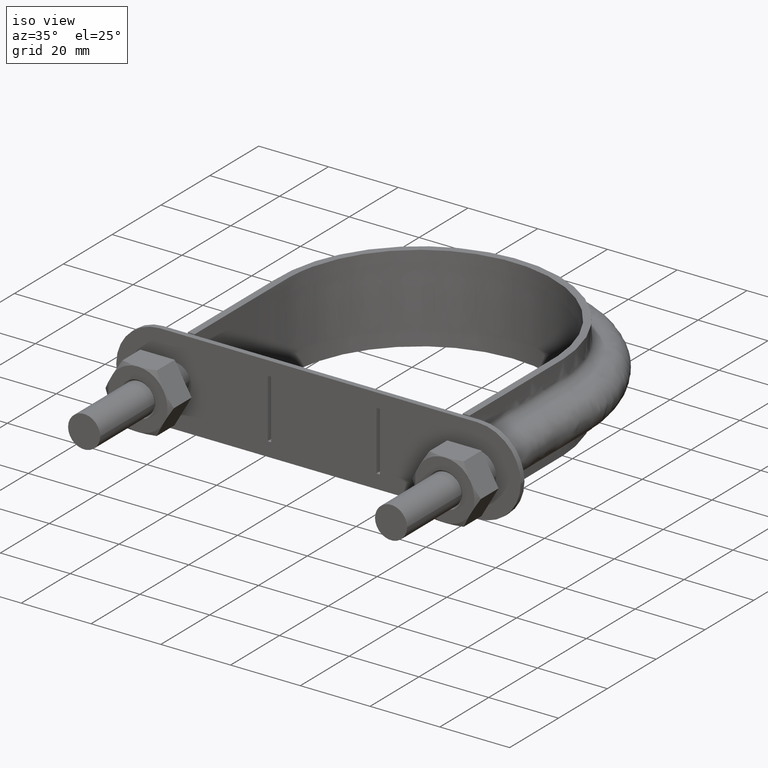
[diagram: clean part render]
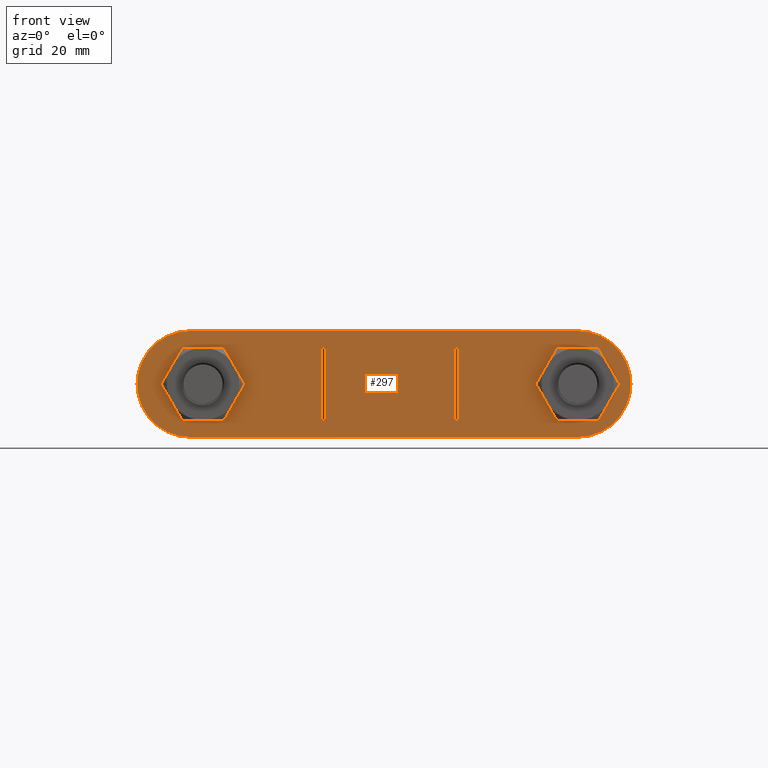
[diagram: tour spotlight — one face highlighted and labeled with its STEP entity id]
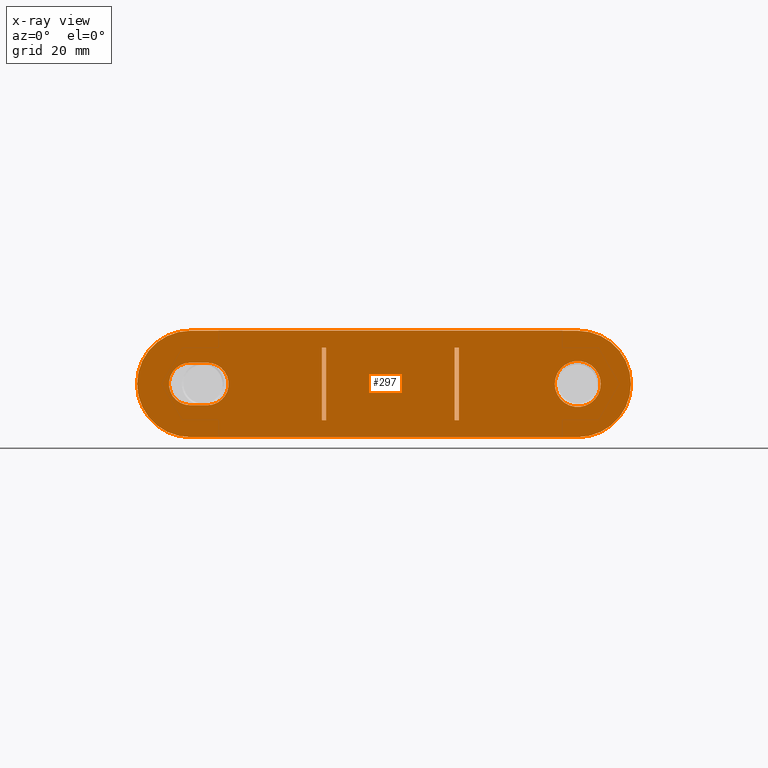
[diagram: x-ray of the same camera — body ghosted, this tour face saturated]
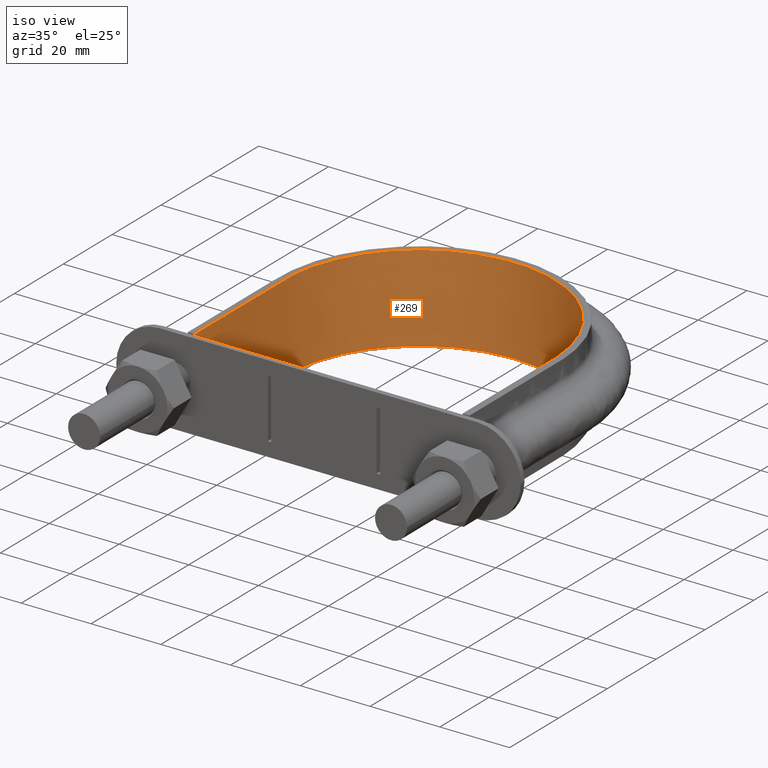
[diagram: tour spotlight — one face highlighted and labeled with its STEP entity id]
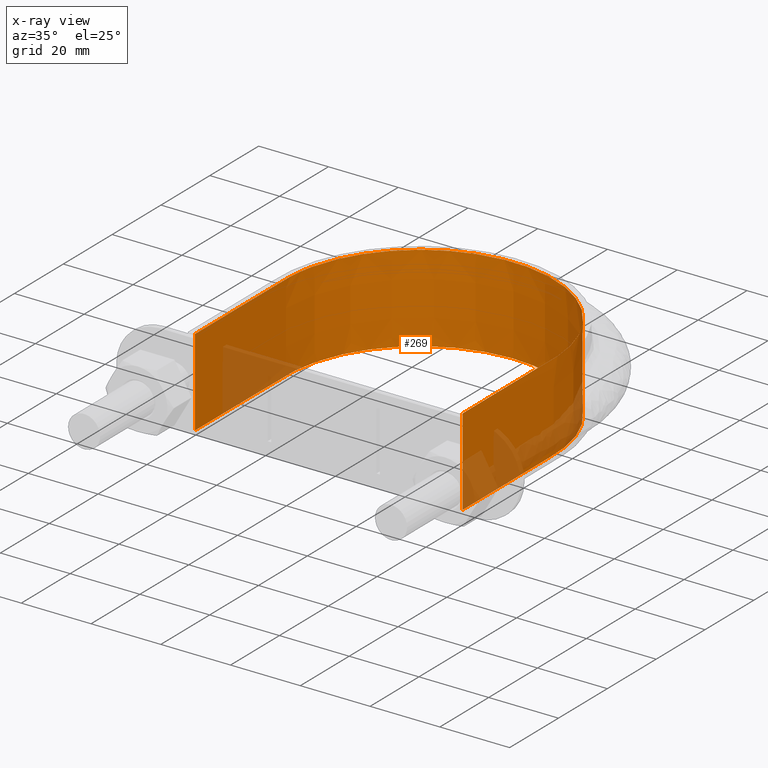
[diagram: x-ray of the same camera — body ghosted, this tour face saturated]
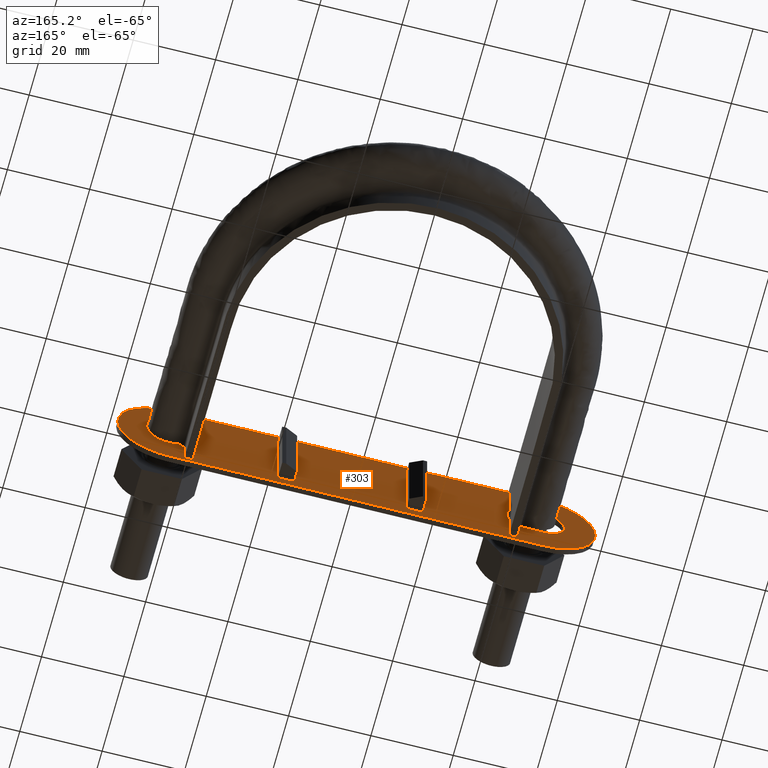
[diagram: tour spotlight — one face highlighted and labeled with its STEP entity id]
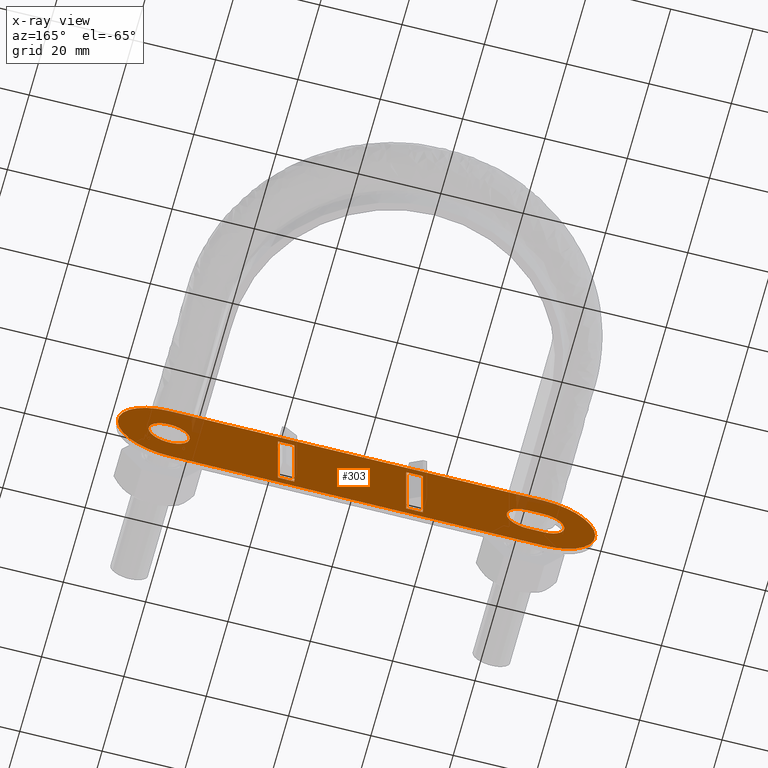
[diagram: x-ray of the same camera — body ghosted, this tour face saturated]
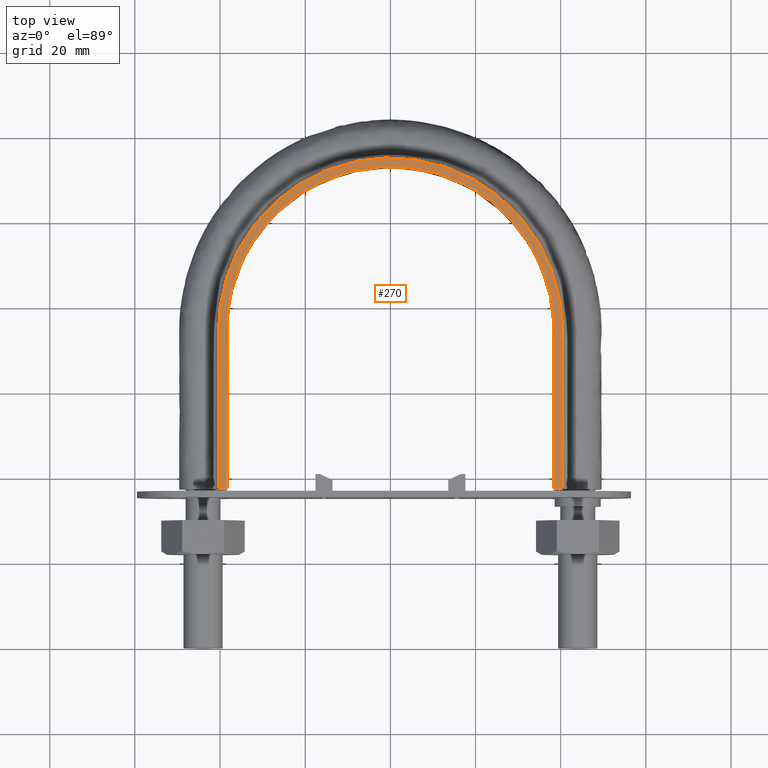
[diagram: tour spotlight — one face highlighted and labeled with its STEP entity id]
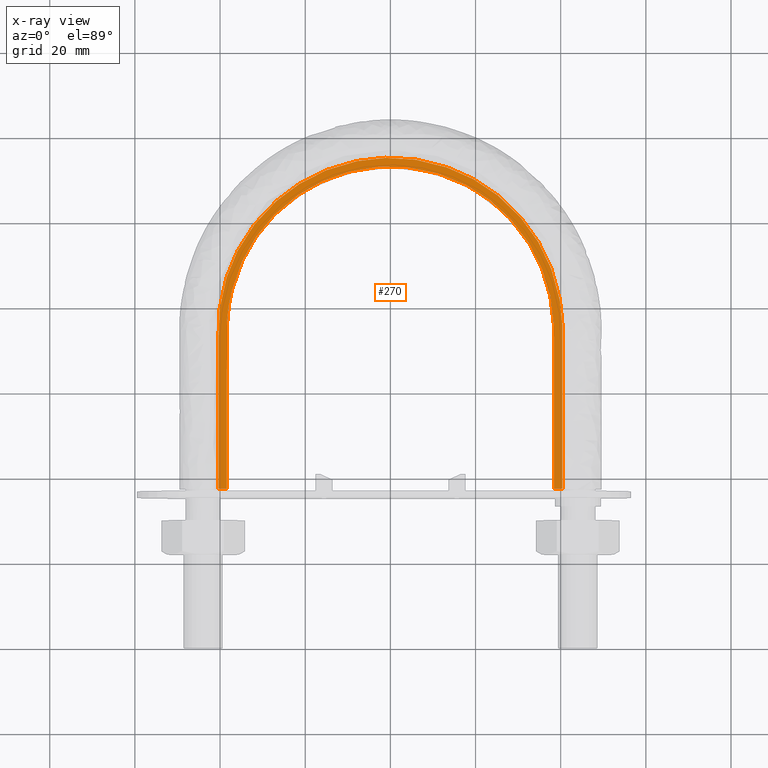
[diagram: x-ray of the same camera — body ghosted, this tour face saturated]
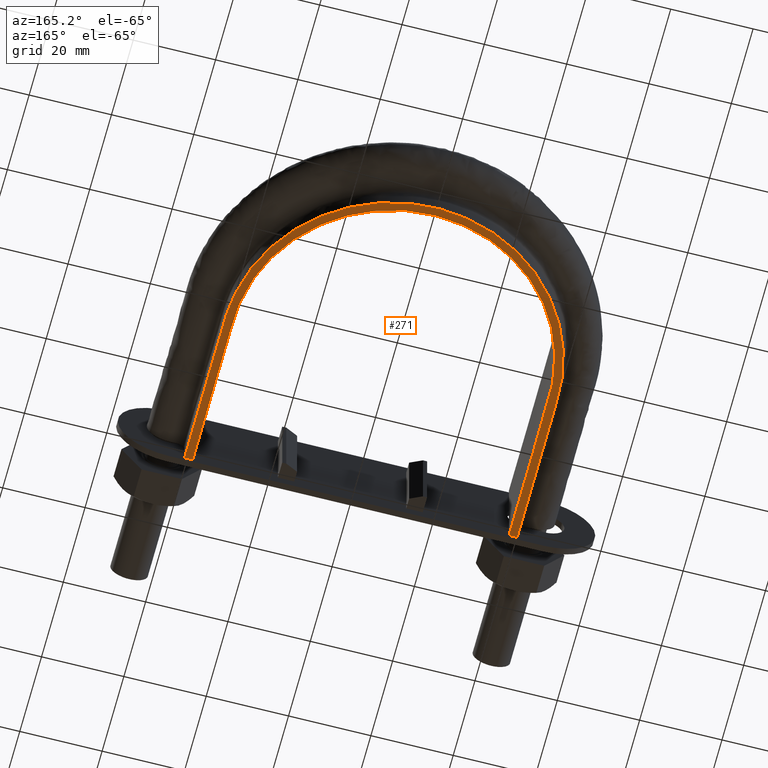
[diagram: tour spotlight — one face highlighted and labeled with its STEP entity id]
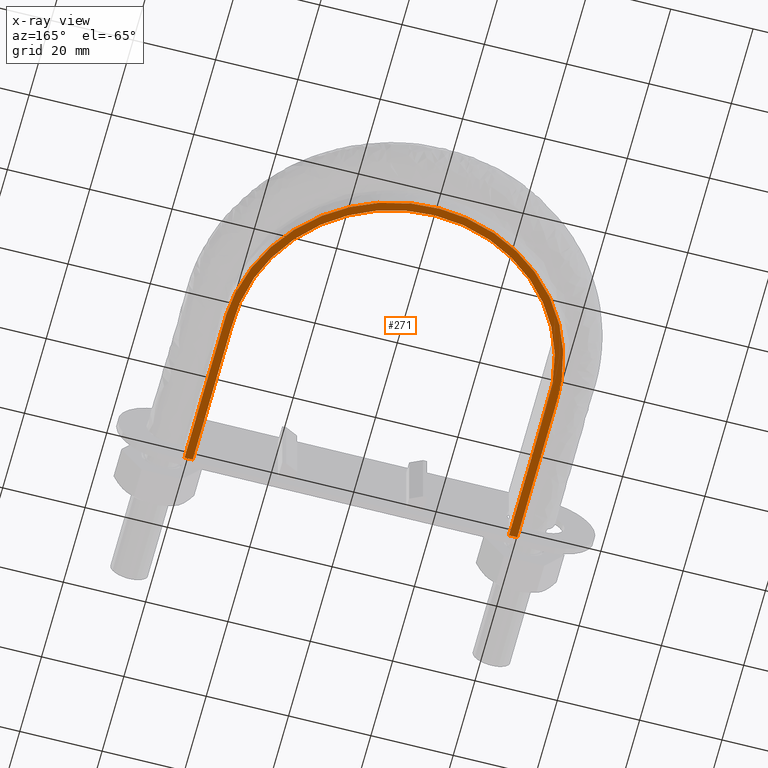
[diagram: x-ray of the same camera — body ghosted, this tour face saturated]
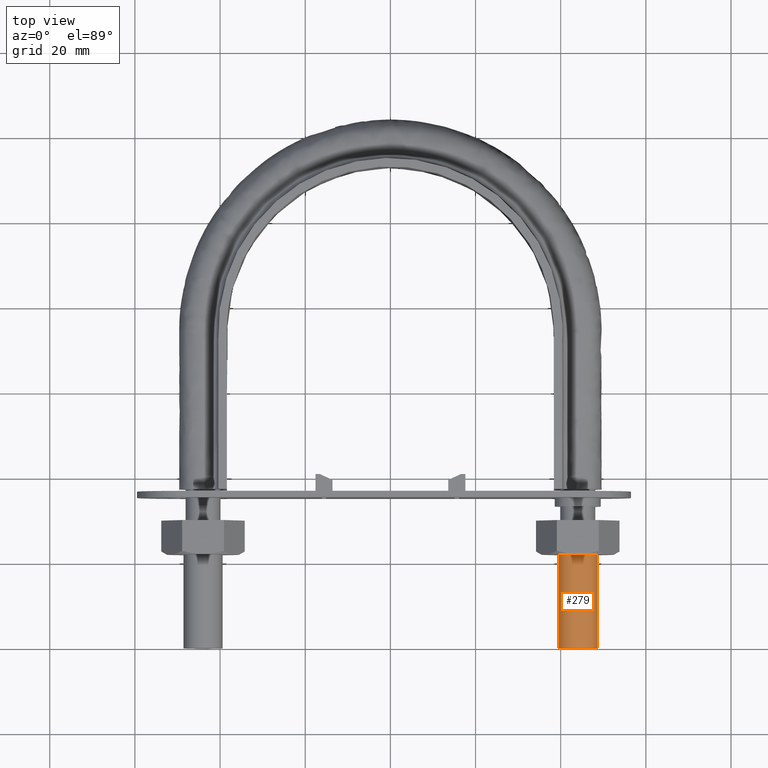
[diagram: tour spotlight — one face highlighted and labeled with its STEP entity id]
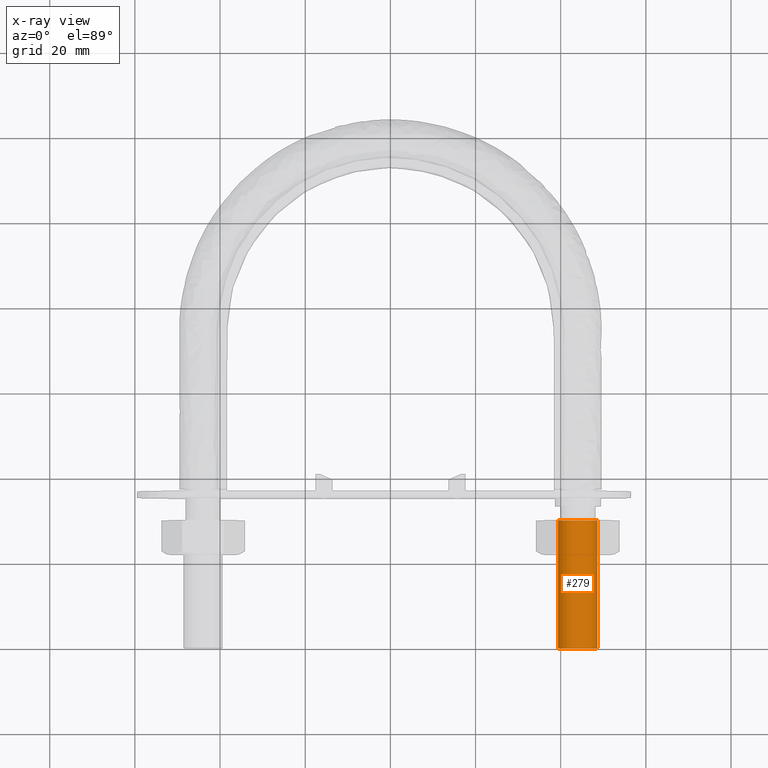
[diagram: x-ray of the same camera — body ghosted, this tour face saturated]
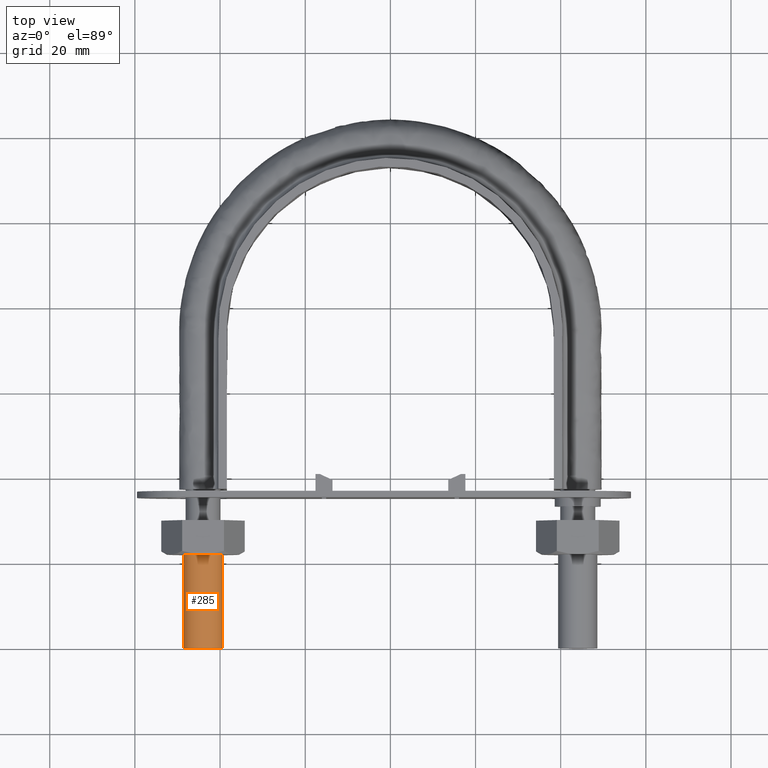
[diagram: tour spotlight — one face highlighted and labeled with its STEP entity id]
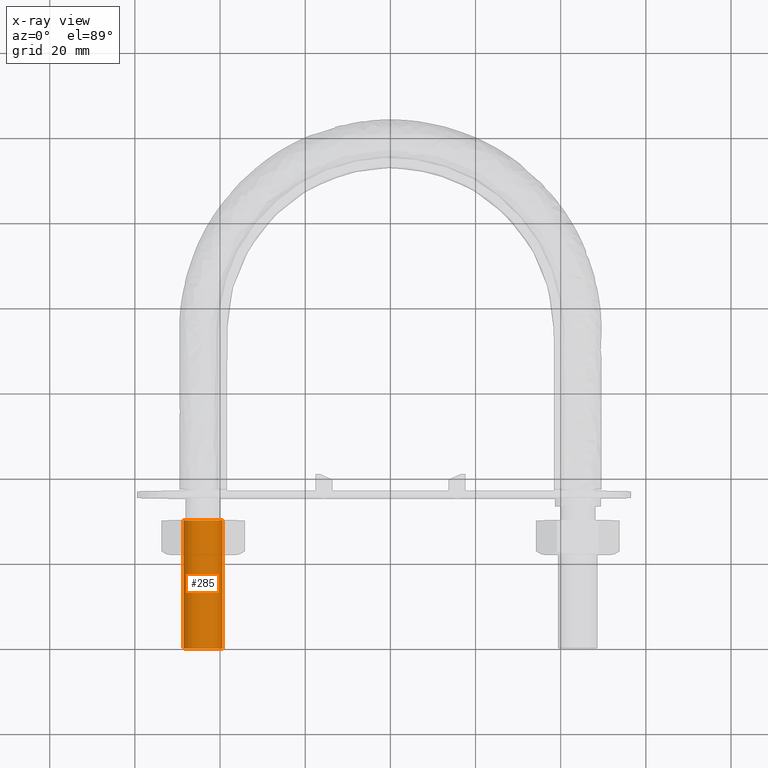
[diagram: x-ray of the same camera — body ghosted, this tour face saturated]
A machine part: a face-by-face anatomy tour. The part has 113 B-rep faces; the first image is the clean iso view, then the 7 largest visible faces are spotlighted one at a time (largest first), each with its STEP entity span.

Face 1 — front view, entity #297. An x-ray twin of the same camera follows (body ghosted, this face saturated) — the face is partly hidden behind the body. In plain terms, the highlighted planar face has unit normal (-0, 1, -0).
Definition (entity closure, byte-faithful):
#297 = ADVANCED_FACE( '', ( #451, #452, #453, #454, #455 ), #456, .F. );
#451 = FACE_BOUND( '', #1533, .T. );
#452 = FACE_OUTER_BOUND( '', #1534, .T. );
#453 = FACE_BOUND( '', #1535, .T. );
#454 = FACE_BOUND( '', #1536, .T. );
#455 = FACE_BOUND( '', #1537, .T. );
#456 = PLANE( '', #1538 );
#1533 = EDGE_LOOP( '', ( #1912, #1913, #1914, #1915 ) );
#1534 = EDGE_LOOP( '', ( #1916, #1917, #1918, #1919, #1920, #1921 ) );
#1535 = EDGE_LOOP( '', ( #1922 ) );
#1536 = EDGE_LOOP( '', ( #1923, #1924, #1925, #1926 ) );
#1537 = EDGE_LOOP( '', ( #1927, #1928, #1929, #1930 ) );
#1538 = AXIS2_PLACEMENT_3D( '', #1931, #1932, #1933 );
#1912 = ORIENTED_EDGE( '', *, *, #2593, .F. );
#1913 = ORIENTED_EDGE( '', *, *, #2594, .T. );
#1914 = ORIENTED_EDGE( '', *, *, #2595, .T. );
#1915 = ORIENTED_EDGE( '', *, *, #2596, .F. );
#1916 = ORIENTED_EDGE( '', *, *, #2597, .F. );
#1917 = ORIENTED_EDGE( '', *, *, #2598, .F. );
#1918 = ORIENTED_EDGE( '', *, *, #2599, .F. );
#1919 = ORIENTED_EDGE( '', *, *, #2600, .F. );
#1920 = ORIENTED_EDGE( '', *, *, #2601, .F. );
#1921 = ORIENTED_EDGE( '', *, *, #2602, .F. );
#1922 = ORIENTED_EDGE( '', *, *, #2603, .T. );
#1923 = ORIENTED_EDGE( '', *, *, #2604, .F. );
#1924 = ORIENTED_EDGE( '', *, *, #2605, .F. );
#1925 = ORIENTED_EDGE( '', *, *, #2606, .F. );
#1926 = ORIENTED_EDGE( '', *, *, #2607, .F. );
#1927 = ORIENTED_EDGE( '', *, *, #2608, .T. );
#1928 = ORIENTED_EDGE( '', *, *, #2609, .T. );
#1929 = ORIENTED_EDGE( '', *, *, #2610, .F. );
#1930 = ORIENTED_EDGE( '', *, *, #2611, .F. );
#1931 = CARTESIAN_POINT( '', ( -47.0000000000000, 35.3000000000000, 1.16518002133849E-011 ) );
#1932 = DIRECTION( '', ( -4.78873666697753E-017, 1.00000000000000, -1.48458090479487E-015 ) );
#1933 = DIRECTION( '', ( 2.47579734491594E-013, 1.48458090479488E-015, 1.00000000000000 ) );
#2593 = EDGE_CURVE( '', #2863, #2864, #2865, .T. );
#2594 = EDGE_CURVE( '', #2863, #2866, #2867, .T. );
#2595 = EDGE_CURVE( '', #2866, #2868, #2869, .T. );
#2596 = EDGE_CURVE( '', #2864, #2868, #2870, .T. );
#2597 = EDGE_CURVE( '', #2871, #2872, #2873, .T. );
#2598 = EDGE_CURVE( '', #2874, #2871, #2875, .T. );
#2599 = EDGE_CURVE( '', #2876, #2874, #2877, .T. );
#2600 = EDGE_CURVE( '', #2878, #2876, #2879, .T. );
#2601 = EDGE_CURVE( '', #2880, #2878, #2881, .T. );
#2602 = EDGE_CURVE( '', #2872, #2880, #2882, .T. );
#2603 = EDGE_CURVE( '', #2883, #2883, #2884, .T. );
#2604 = EDGE_CURVE( '', #2885, #2886, #2887, .T. );
#2605 = EDGE_CURVE( '', #2888, #2885, #2889, .T. );
#2606 = EDGE_CURVE( '', #2890, #2888, #2891, .T. );
#2607 = EDGE_CURVE( '', #2886, #2890, #2892, .T. );
#2608 = EDGE_CURVE( '', #2893, #2894, #2895, .T. );
#2609 = EDGE_CURVE( '', #2894, #2896, #2897, .T. );
#2610 = EDGE_CURVE( '', #2898, #2896, #2899, .T. );
#2611 = EDGE_CURVE( '', #2893, #2898, #2900, .T. );
#2863 = VERTEX_POINT( '', #3520 );
#2864 = VERTEX_POINT( '', #3521 );
#2865 = LINE( '', #3522, #3523 );
#2866 = VERTEX_POINT( '', #3524 );
#2867 = LINE( '', #3525, #3526 );
#2868 = VERTEX_POINT( '', #3527 );
#2869 = LINE( '', #3528, #3529 );
#2870 = LINE( '', #3530, #3531 );
#2871 = VERTEX_POINT( '', #3532 );
#2872 = VERTEX_POINT( '', #3533 );
#2873 = CIRCLE( '', #3534, 12.5000000000000 );
#2874 = VERTEX_POINT( '', #3535 );
#2875 = CIRCLE( '', #3536, 12.5000000000000 );
#2876 = VERTEX_POINT( '', #3537 );
#2877 = LINE( '', #3538, #3539 );
#2878 = VERTEX_POINT( '', #3540 );
#2879 = CIRCLE( '', #3541, 12.5000000000000 );
#2880 = VERTEX_POINT( '', #3542 );
#2881 = CIRCLE( '', #3543, 12.5000000000000 );
#2882 = LINE( '', #3544, #3545 );
#2883 = VERTEX_POINT( '', #3546 );
#2884 = CIRCLE( '', #3547, 5.40000000000000 );
#2885 = VERTEX_POINT( '', #3548 );
#2886 = VERTEX_POINT( '', #3549 );
#2887 = CIRCLE( '', #3550, 5.00000000000000 );
#2888 = VERTEX_POINT( '', #3551 );
#2889 = LINE( '', #3552, #3553 );
#2890 = VERTEX_POINT( '', #3554 );
#2891 = CIRCLE( '', #3555, 5.00000000000000 );
#2892 = LINE( '', #3556, #3557 );
#2893 = VERTEX_POINT( '', #3558 );
#2894 = VERTEX_POINT( '', #3559 );
#2895 = LINE( '', #3560, #3561 );
#2896 = VERTEX_POINT( '', #3562 );
#2897 = LINE( '', #3563, #3564 );
#2898 = VERTEX_POINT( '', #3565 );
#2899 = LINE( '', #3566, #3567 );
#2900 = LINE( '', #3568, #3569 );
#3520 = CARTESIAN_POINT( '', ( -16.1000000000021, 35.3000000000000, -8.49999999999600 ) );
#3521 = CARTESIAN_POINT( '', ( -15.1000000000021, 35.3000000000000, -8.49999999999625 ) );
#3522 = CARTESIAN_POINT( '', ( -16.1000000000021, 35.3000000000000, -8.49999999999600 ) );
#3523 = VECTOR( '', #4150, 1000.00000000000 );
#3524 = CARTESIAN_POINT( '', ( -16.0999999999979, 35.3000000000000, 8.50000000000400 ) );
#3525 = CARTESIAN_POINT( '', ( -16.1000000000021, 35.3000000000000, -8.49999999999600 ) );
#3526 = VECTOR( '', #4151, 1000.00000000000 );
#3527 = CARTESIAN_POINT( '', ( -15.0999999999979, 35.3000000000000, 8.50000000000375 ) );
#3528 = CARTESIAN_POINT( '', ( -16.0999999999979, 35.3000000000000, 8.50000000000400 ) );
#3529 = VECTOR( '', #4152, 1000.00000000000 );
#3530 = CARTESIAN_POINT( '', ( -15.1000000000021, 35.3000000000000, -8.49999999999625 ) );
#3531 = VECTOR( '', #4153, 1000.00000000000 );
#3532 = CARTESIAN_POINT( '', ( -59.5000000000000, 35.3000000000000, 1.47430774475778E-011 ) );
#3533 = CARTESIAN_POINT( '', ( -46.9999999999969, 35.3000000000000, 12.5000000000117 ) );
#3534 = AXIS2_PLACEMENT_3D( '', #4154, #4155, #4156 );
#3535 = CARTESIAN_POINT( '', ( -47.0000000000031, 35.3000000000000, -12.4999999999883 ) );
#3536 = AXIS2_PLACEMENT_3D( '', #4157, #4158, #4159 );
#3537 = CARTESIAN_POINT( '', ( 43.9999999999970, 35.3000000000000, -12.5000000000109 ) );
#3538 = CARTESIAN_POINT( '', ( 43.9999999999970, 35.3000000000000, -12.5000000000109 ) );
#3539 = VECTOR( '', #4160, 1000.00000000000 );
#3540 = CARTESIAN_POINT( '', ( 56.5000000000000, 35.3000000000000, -1.39727023064952E-011 ) );
#3541 = AXIS2_PLACEMENT_3D( '', #4161, #4162, #4163 );
#3542 = CARTESIAN_POINT( '', ( 44.0000000000031, 35.3000000000000, 12.4999999999891 ) );
#3543 = AXIS2_PLACEMENT_3D( '', #4164, #4165, #4166 );
#3544 = CARTESIAN_POINT( '', ( -46.9999999999969, 35.3000000000000, 12.5000000000117 ) );
#3545 = VECTOR( '', #4167, 1000.00000000000 );
#3546 = CARTESIAN_POINT( '', ( 49.4000000000000, 35.3000000000000, -1.22131514681289E-011 ) );
#3547 = AXIS2_PLACEMENT_3D( '', #4168, #4169, #4170 );
#3548 = CARTESIAN_POINT( '', ( -46.9999999999988, 35.2999984999318, 5.00000000001165 ) );
#3549 = CARTESIAN_POINT( '', ( -47.0000000000012, 35.2999984999318, -4.99999999998835 ) );
#3550 = AXIS2_PLACEMENT_3D( '', #4171, #4172, #4173 );
#3551 = CARTESIAN_POINT( '', ( -42.9999999999988, 35.2999984999318, 5.00000000001066 ) );
#3552 = CARTESIAN_POINT( '', ( -42.9999999999988, 35.2999984999318, 5.00000000001066 ) );
#3553 = VECTOR( '', #4174, 1000.00000000000 );
#3554 = CARTESIAN_POINT( '', ( -43.0000000000012, 35.2999984999318, -4.99999999998934 ) );
#3555 = AXIS2_PLACEMENT_3D( '', #4175, #4176, #4177 );
#3556 = CARTESIAN_POINT( '', ( -47.0000000000012, 35.2999984999318, -4.99999999998835 ) );
#3557 = VECTOR( '', #4178, 1000.00000000000 );
#3558 = CARTESIAN_POINT( '', ( 16.0999999999979, 35.3000000000000, -8.50000000000397 ) );
#3559 = CARTESIAN_POINT( '', ( 15.0999999999979, 35.3000000000000, -8.50000000000373 ) );
#3560 = CARTESIAN_POINT( '', ( 16.0999999999979, 35.3000000000000, -8.50000000000397 ) );
#3561 = VECTOR( '', #4179, 1000.00000000000 );
#3562 = CARTESIAN_POINT( '', ( 15.1000000000021, 35.3000000000000, 8.49999999999628 ) );
#3563 = CARTESIAN_POINT( '', ( 15.0999999999979, 35.3000000000000, -8.50000000000373 ) );
#3564 = VECTOR( '', #4180, 1000.00000000000 );
#3565 = CARTESIAN_POINT( '', ( 16.1000000000021, 35.3000000000000, 8.49999999999603 ) );
#3566 = CARTESIAN_POINT( '', ( 16.1000000000021, 35.3000000000000, 8.49999999999603 ) );
#3567 = VECTOR( '', #4181, 1000.00000000000 );
#3568 = CARTESIAN_POINT( '', ( 16.0999999999979, 35.3000000000000, -8.50000000000397 ) );
#3569 = VECTOR( '', #4182, 1000.00000000000 );
#4150 = DIRECTION( '', ( 1.00000000000000, 4.78873666694077E-017, -2.47579734491594E-013 ) );
#4151 = DIRECTION( '', ( 2.47699483305936E-013, 1.74138306587251E-015, 1.00000000000000 ) );
#4152 = DIRECTION( '', ( 1.00000000000000, 4.78873666694077E-017, -2.47579734491594E-013 ) );
#4153 = DIRECTION( '', ( 2.47699483305936E-013, 1.74138306587251E-015, 1.00000000000000 ) );
#4154 = CARTESIAN_POINT( '', ( -47.0000000000000, 35.3000000000000, 1.16518002133849E-011 ) );
#4155 = DIRECTION( '', ( -4.78873666697753E-017, 1.00000000000000, -1.48458090479487E-015 ) );
#4156 = DIRECTION( '', ( -1.00000000000000, -4.78873666694079E-017, 2.47440956613516E-013 ) );
#4157 = CARTESIAN_POINT( '', ( -47.0000000000000, 35.3000000000000, 1.16552696603368E-011 ) );
#4158 = DIRECTION( '', ( -4.78873666697753E-017, 1.00000000000000, -1.48458090479487E-015 ) );
#4159 = DIRECTION( '', ( -2.47024622979282E-013, -1.48458090479488E-015, -1.00000000000000 ) );
#4160 = DIRECTION( '', ( -1.00000000000000, -4.78873666694077E-017, 2.47579734491594E-013 ) );
#4161 = CARTESIAN_POINT( '', ( 44.0000000000000, 35.3000000000000, -1.08744861783983E-011 ) );
#4162 = DIRECTION( '', ( -4.78873666697753E-017, 1.00000000000000, -1.48458090479487E-015 ) );
#4163 = DIRECTION( '', ( 1.00000000000000, 4.78873666694079E-017, -2.47440956613516E-013 ) );
#4164 = CARTESIAN_POINT( '', ( 44.0000000000000, 35.3000000000000, -1.08779556253502E-011 ) );
#4165 = DIRECTION( '', ( -4.78873666697753E-017, 1.00000000000000, -1.48458090479487E-015 ) );
#4166 = DIRECTION( '', ( 2.47579734491594E-013, 1.48458090479488E-015, 1.00000000000000 ) );
#4167 = DIRECTION( '', ( 1.00000000000000, 4.78873666694077E-017, -2.47579734491594E-013 ) );
#4168 = CARTESIAN_POINT( '', ( 44.0000000000000, 35.3000000000000, -1.08762209018742E-011 ) );
#4169 = DIRECTION( '', ( -4.78873666697753E-017, 1.00000000000000, -1.48458090479487E-015 ) );
#4170 = DIRECTION( '', ( 1.00000000000000, 4.78873666694077E-017, -2.47579734491594E-013 ) );
#4171 = CARTESIAN_POINT( '', ( -47.0000000000000, 35.2999984999318, 1.16535349390878E-011 ) );
#4172 = DIRECTION( '', ( 4.78873666697753E-017, -1.00000000000000, 1.48458090479487E-015 ) );
#4173 = DIRECTION( '', ( 2.47579734491594E-013, 1.48458090479488E-015, 1.00000000000000 ) );
#4174 = DIRECTION( '', ( -1.00000000000000, -4.78873666694077E-017, 2.47579734491594E-013 ) );
#4175 = CARTESIAN_POINT( '', ( -43.0000000000000, 35.2999984999318, 1.06632160011214E-011 ) );
#4176 = DIRECTION( '', ( 4.78873666697753E-017, -1.00000000000000, 1.48458090479487E-015 ) );
#4177 = DIRECTION( '', ( -2.47579734491594E-013, -1.48458090479488E-015, -1.00000000000000 ) );
#4178 = DIRECTION( '', ( 1.00000000000000, 4.78873666694077E-017, -2.47579734491594E-013 ) );
#4179 = DIRECTION( '', ( -1.00000000000000, 7.45732687128300E-017, 2.47579734491594E-013 ) );
#4180 = DIRECTION( '', ( 2.47459985677253E-013, 1.74138306587251E-015, 1.00000000000000 ) );
#4181 = DIRECTION( '', ( -1.00000000000000, 7.45732687128300E-017, 2.47579734491594E-013 ) );
#4182 = DIRECTION( '', ( 2.47459985677253E-013, 1.74138306587251E-015, 1.00000000000000 ) );

Face 2 — iso view, entity #269. An x-ray twin of the same camera follows (body ghosted, this face saturated) — the face is partly hidden behind the body. In plain terms, the highlighted face is a SurfaceOfExtrusion surface.
Definition (entity closure, byte-faithful):
#269 = ADVANCED_FACE( '', ( #387 ), #388, .T. );
#387 = FACE_OUTER_BOUND( '', #644, .T. );
#388 = SURFACE_OF_LINEAR_EXTRUSION( '', #645, #646 );
#644 = EDGE_LOOP( '', ( #1736, #1737, #1738, #1739 ) );
#645 = B_SPLINE_CURVE_WITH_KNOTS( '', 3, ( #1740, #1741, #1742, #1743, #1744, #1745, #1746, #1747, #1748, #1749, #1750, #1751, #1752, #1753, #1754, #1755, #1756 ), .UNSPECIFIED., .F., .F., ( 4, 3, 1, 1, 1, 1, 1, 1, 1, 3, 4 ), ( -7.93017456359102, -7.00000000000000, -6.50000000000000, -6.00000000000000, -5.00000000000000, -4.00000000000000, -3.00000000000000, -2.00000000000000, -1.50000000000000, -1.00000000000000, -0.0698254364089773 ), .UNSPECIFIED. );
#646 = VECTOR( '', #1757, 1000.00000000000 );
#1736 = ORIENTED_EDGE( '', *, *, #2546, .T. );
#1737 = ORIENTED_EDGE( '', *, *, #2555, .T. );
#1738 = ORIENTED_EDGE( '', *, *, #2552, .F. );
#1739 = ORIENTED_EDGE( '', *, *, #2556, .T. );
#1740 = CARTESIAN_POINT( '', ( 38.4000000000000, 37.3000000000000, 12.5000100000909 ) );
#1741 = CARTESIAN_POINT( '', ( 38.4000000000000, 49.7333333333333, 12.5000100000909 ) );
#1742 = CARTESIAN_POINT( '', ( 38.4000000000000, 62.1666666666667, 12.5000100000909 ) );
#1743 = CARTESIAN_POINT( '', ( 38.4000000000000, 74.6000000000000, 12.5000100000909 ) );
#1744 = CARTESIAN_POINT( '', ( 38.4000000000000, 77.9378960382428, 12.5000100000909 ) );
#1745 = CARTESIAN_POINT( '', ( 37.5004323173849, 84.6534987012364, 12.5000100000909 ) );
#1746 = CARTESIAN_POINT( '', ( 32.3590360537293, 97.1468427507952, 12.5000100000909 ) );
#1747 = CARTESIAN_POINT( '', ( 20.0971465093487, 109.410921736661, 12.5000100000909 ) );
#1748 = CARTESIAN_POINT( '', ( 2.79356000082899E-014, 114.794539131670, 12.5000100000909 ) );
#1749 = CARTESIAN_POINT( '', ( -20.0971465093486, 109.410921736661, 12.5000100000909 ) );
#1750 = CARTESIAN_POINT( '', ( -32.3590360537293, 97.1468427507952, 12.5000100000909 ) );
#1751 = CARTESIAN_POINT( '', ( -37.5004323173848, 84.6534987012364, 12.5000100000909 ) );
#1752 = CARTESIAN_POINT( '', ( -38.4000000000000, 77.9378960382428, 12.5000100000909 ) );
#1753 = CARTESIAN_POINT( '', ( -38.4000000000000, 74.6000000000000, 12.5000100000909 ) );
#1754 = CARTESIAN_POINT( '', ( -38.4000000000000, 62.1666666666667, 12.5000100000909 ) );
#1755 = CARTESIAN_POINT( '', ( -38.4000000000000, 49.7333333333333, 12.5000100000909 ) );
#1756 = CARTESIAN_POINT( '', ( -38.4000000000000, 37.3000000000000, 12.5000100000909 ) );
#1757 = DIRECTION( '', ( 0.000000000000000, 0.000000000000000, -1.00000000000000 ) );
#2546 = EDGE_CURVE( '', #2787, #2788, #2789, .T. );
#2552 = EDGE_CURVE( '', #2797, #2800, #2801, .T. );
#2555 = EDGE_CURVE( '', #2788, #2800, #2805, .F. );
#2556 = EDGE_CURVE( '', #2797, #2787, #2806, .T. );
#2787 = VERTEX_POINT( '', #3194 );
#2788 = VERTEX_POINT( '', #3195 );
#2789 = LINE( '', #3196, #3197 );
#2797 = VERTEX_POINT( '', #3246 );
#2800 = VERTEX_POINT( '', #3250 );
#2801 = LINE( '', #3251, #3252 );
#2805 = B_SPLINE_CURVE_WITH_KNOTS( '', 3, ( #3287, #3288, #3289, #3290, #3291, #3292, #3293, #3294, #3295, #3296, #3297, #3298, #3299, #3300, #3301, #3302, #3303 ), .UNSPECIFIED., .F., .F., ( 4, 3, 1, 1, 1, 1, 1, 1, 1, 3, 4 ), ( -7.93017456359102, -7.00000000000000, -6.50000000000000, -6.00000000000000, -5.00000000000000, -4.00000000000000, -3.00000000000000, -2.00000000000000, -1.50000000000000, -1.00000000000000, -0.0698254364089773 ), .UNSPECIFIED. );
#2806 = B_SPLINE_CURVE_WITH_KNOTS( '', 3, ( #3304, #3305, #3306, #3307, #3308, #3309, #3310, #3311, #3312, #3313, #3314, #3315, #3316, #3317, #3318, #3319, #3320, #3321, #3322, #3323, #3324, #3325, #3326, #3327, #3328, #3329, #3330, #3331, #3332, #3333, #3334, #3335, #3336, #3337, #3338, #3339, #3340, #3341, #3342, #3343, #3344, #3345, #3346, #3347, #3348, #3349, #3350, #3351, #3352, #3353, #3354, #3355, #3356, #3357, #3358, #3359, #3360, #3361, #3362, #3363, #3364, #3365, #3366, #3367, #3368, #3369, #3370, #3371, #3372, #3373, #3374, #3375, #3376, #3377, #3378, #3379, #3380, #3381, #3382, #3383, #3384, #3385, #3386, #3387, #3388, #3389 ), .UNSPECIFIED., .F., .F., ( 4, 1, 2, 2, 2, 2, 2, 2, 2, 2, 2, 2, 2, 2, 2, 2, 2, 2, 2, 2, 2, 2, 2, 2, 2, 2, 2, 2, 2, 2, 2, 2, 2, 2, 2, 2, 2, 2, 2, 2, 2, 2, 1, 4 ), ( 6.93889390390723E-018, 0.0243379018108105, 0.0365068527162158, 0.0380279715793914, 0.0395490904425670, 0.0425913281689183, 0.0456335658952696, 0.0486758036216209, 0.0547602790743234, 0.0578025168006747, 0.0593236356638503, 0.0608447545270259, 0.0669292299797284, 0.0699714677060797, 0.0714925865692553, 0.0730137054324310, 0.0790981808851335, 0.0851826563378360, 0.0867037752010117, 0.0882248940641873, 0.0912671317905386, 0.0973516072432410, 0.0988727261064167, 0.100393844969592, 0.103436082695944, 0.109520558148646, 0.112562795874997, 0.115605033601349, 0.121689509054051, 0.123210627917227, 0.124731746780402, 0.127773984506753, 0.133858459959456, 0.136900697685807, 0.139942935412158, 0.146027410864861, 0.149069648591212, 0.150590767454388, 0.152111886317563, 0.155154124043914, 0.156675242907090, 0.158196361770266, 0.170365312675671, 0.194703214486481 ), .UNSPECIFIED. );
#3194 = CARTESIAN_POINT( '', ( -38.4000000000000, 37.3000000000000, 12.5000000000000 ) );
#3195 = CARTESIAN_POINT( '', ( -38.4000000000000, 37.3000000000000, -12.5000000000000 ) );
#3196 = CARTESIAN_POINT( '', ( -38.4000000000000, 37.3000000000000, 12.5000100000909 ) );
#3197 = VECTOR( '', #4084, 1000.00000000000 );
#3246 = CARTESIAN_POINT( '', ( 38.4000000000000, 37.3000000000000, 12.5000000000000 ) );
#3250 = CARTESIAN_POINT( '', ( 38.4000000000000, 37.3000000000000, -12.5000000000000 ) );
#3251 = CARTESIAN_POINT( '', ( 38.4000000000000, 37.3000000000000, 12.5000100000909 ) );
#3252 = VECTOR( '', #4088, 1000.00000000000 );
#3287 = CARTESIAN_POINT( '', ( 38.4000000000000, 37.3000000000000, -12.5000000000000 ) );
#3288 = CARTESIAN_POINT( '', ( 38.4000000000000, 49.7333333333333, -12.5000000000000 ) );
#3289 = CARTESIAN_POINT( '', ( 38.4000000000000, 62.1666666666667, -12.5000000000000 ) );
#3290 = CARTESIAN_POINT( '', ( 38.4000000000000, 74.6000000000000, -12.5000000000000 ) );
#3291 = CARTESIAN_POINT( '', ( 38.4000000000000, 77.9378960382428, -12.5000000000000 ) );
#3292 = CARTESIAN_POINT( '', ( 37.5004323173849, 84.6534987012364, -12.5000000000000 ) );
#3293 = CARTESIAN_POINT( '', ( 32.3590360537293, 97.1468427507952, -12.5000000000000 ) );
#3294 = CARTESIAN_POINT( '', ( 20.0971465093487, 109.410921736661, -12.5000000000000 ) );
#3295 = CARTESIAN_POINT( '', ( 2.79356000082899E-014, 114.794539131670, -12.5000000000000 ) );
#3296 = CARTESIAN_POINT( '', ( -20.0971465093486, 109.410921736661, -12.5000000000000 ) );
#3297 = CARTESIAN_POINT( '', ( -32.3590360537293, 97.1468427507952, -12.5000000000000 ) );
#3298 = CARTESIAN_POINT( '', ( -37.5004323173848, 84.6534987012364, -12.5000000000000 ) );
#3299 = CARTESIAN_POINT( '', ( -38.4000000000000, 77.9378960382428, -12.5000000000000 ) );
#3300 = CARTESIAN_POINT( '', ( -38.4000000000000, 74.6000000000000, -12.5000000000000 ) );
#3301 = CARTESIAN_POINT( '', ( -38.4000000000000, 62.1666666666667, -12.5000000000000 ) );
#3302 = CARTESIAN_POINT( '', ( -38.4000000000000, 49.7333333333333, -12.5000000000000 ) );
#3303 = CARTESIAN_POINT( '', ( -38.4000000000000, 37.3000000000000, -12.5000000000000 ) );
#3304 = CARTESIAN_POINT( '', ( 38.4000000000000, 37.3000000000000, 12.5000000000000 ) );
#3305 = CARTESIAN_POINT( '', ( 38.4000000000000, 45.4126339369367, 12.5000000000000 ) );
#3306 = CARTESIAN_POINT( '', ( 38.4000000000000, 57.5815848423419, 12.5000000000000 ) );
#3307 = CARTESIAN_POINT( '', ( 38.4000000000000, 69.7505357477469, 12.5000000000000 ) );
#3308 = CARTESIAN_POINT( '', ( 38.4000000000000, 74.3138923372738, 12.5000000000000 ) );
#3309 = CARTESIAN_POINT( '', ( 38.4027743076037, 74.8211194098904, 12.5000000000000 ) );
#3310 = CARTESIAN_POINT( '', ( 38.3830167791574, 75.8338636956792, 12.5000000000000 ) );
#3311 = CARTESIAN_POINT( '', ( 38.3628782069929, 76.3395426144401, 12.5000000000000 ) );
#3312 = CARTESIAN_POINT( '', ( 38.2722040230530, 77.8545348977658, 12.5000000000000 ) );
#3313 = CARTESIAN_POINT( '', ( 38.1714849409613, 78.8618088567026, 12.5000000000000 ) );
#3314 = CARTESIAN_POINT( '', ( 37.8904277266655, 80.8709771566201, 12.5000000000000 ) );
#3315 = CARTESIAN_POINT( '', ( 37.7100929165158, 81.8728717220619, 12.5000000000000 ) );
#3316 = CARTESIAN_POINT( '', ( 37.2682777085644, 83.8711780914732, 12.5000000000000 ) );
#3317 = CARTESIAN_POINT( '', ( 37.0058649207665, 84.8692095980045, 12.5000000000000 ) );
#3318 = CARTESIAN_POINT( '', ( 36.1099085355124, 87.8004283289942, 12.5000000000000 ) );
#3319 = CARTESIAN_POINT( '', ( 35.3652812283339, 89.6892778605102, 12.5000000000000 ) );
#3320 = CARTESIAN_POINT( '', ( 34.0270721353676, 92.4244820465236, 12.5000000000000 ) );
#3321 = CARTESIAN_POINT( '', ( 33.5438803306412, 93.3197635736672, 12.5000000000000 ) );
#3322 = CARTESIAN_POINT( '', ( 32.7614856080269, 94.6371533741601, 12.5000000000000 ) );
#3323 = CARTESIAN_POINT( '', ( 32.4911122498970, 95.0720394393450, 12.5000000000000 ) );
#3324 = CARTESIAN_POINT( '', ( 31.9310694523163, 95.9332591910994, 12.5000000000000 ) );
#3325 = CARTESIAN_POINT( '', ( 31.6416548483074, 96.3590998328813, 12.5000000000000 ) );
#3326 = CARTESIAN_POINT( '', ( 30.1598500561493, 98.4479727097781, 12.5000000000000 ) );
#3327 = CARTESIAN_POINT( '', ( 28.8544690281685, 100.006253780205, 12.5000000000000 ) );
#3328 = CARTESIAN_POINT( '', ( 26.7242269234555, 102.181725572989, 12.5000000000000 ) );
#3329 = CARTESIAN_POINT( '', ( 25.9852601970116, 102.879711605143, 12.5000000000000 ) );
#3330 = CARTESIAN_POINT( '', ( 24.8327554866620, 103.885251295440, 12.5000000000000 ) );
#3331 = CARTESIAN_POINT( '', ( 24.4412331318475, 104.213513644747, 12.5000000000000 ) );
#3332 = CARTESIAN_POINT( '', ( 23.6432116170529, 104.855950622700, 12.5000000000000 ) );
#3333 = CARTESIAN_POINT( '', ( 23.2357844532912, 105.170799679600, 12.5000000000000 ) );
#3334 = CARTESIAN_POINT( '', ( 21.1728995967699, 106.699717522120, 12.5000000000000 ) );
#3335 = CARTESIAN_POINT( '', ( 19.4461214786922, 107.775116348712, 12.5000000000000 ) );
#3336 = CARTESIAN_POINT( '', ( 15.8424012951625, 109.635807157406, 12.5000000000000 ) );
#3337 = CARTESIAN_POINT( '', ( 13.9663663217122, 110.422851581443, 12.5000000000000 ) );
#3338 = CARTESIAN_POINT( '', ( 11.5271708169510, 111.224762065559, 12.5000000000000 ) );
#3339 = CARTESIAN_POINT( '', ( 11.0351210878856, 111.375746188077, 12.5000000000000 ) );
#3340 = CARTESIAN_POINT( '', ( 10.0502423640906, 111.656786422983, 12.5000000000000 ) );
#3341 = CARTESIAN_POINT( '', ( 9.55637016529610, 111.787194835959, 12.5000000000000 ) );
#3342 = CARTESIAN_POINT( '', ( 8.07051418322849, 112.148502213831, 12.5000000000000 ) );
#3343 = CARTESIAN_POINT( '', ( 7.07429985999563, 112.349545743025, 12.5000000000000 ) );
#3344 = CARTESIAN_POINT( '', ( 4.06886690428269, 112.834187354574, 12.5000000000000 ) );
#3345 = CARTESIAN_POINT( '', ( 2.04300780873461, 113.000351662539, 12.5000000000000 ) );
#3346 = CARTESIAN_POINT( '', ( -0.518810472446378, 112.999911391897, 12.5000000000000 ) );
#3347 = CARTESIAN_POINT( '', ( -1.03384934041149, 112.989267949138, 12.5000000000000 ) );
#3348 = CARTESIAN_POINT( '', ( -2.05999227101049, 112.947123645522, 12.5000000000000 ) );
#3349 = CARTESIAN_POINT( '', ( -2.57100025916389, 112.915690794062, 12.5000000000000 ) );
#3350 = CARTESIAN_POINT( '', ( -4.09798525337142, 112.791070625936, 12.5000000000000 ) );
#3351 = CARTESIAN_POINT( '', ( -5.10793619044585, 112.667626472699, 12.5000000000000 ) );
#3352 = CARTESIAN_POINT( '', ( -8.11438462156156, 112.179780837088, 12.5000000000000 ) );
#3353 = CARTESIAN_POINT( '', ( -10.0876738344831, 111.698850790018, 12.5000000000000 ) );
#3354 = CARTESIAN_POINT( '', ( -13.0003199951633, 110.740024822744, 12.5000000000000 ) );
#3355 = CARTESIAN_POINT( '', ( -13.9672170977489, 110.378727202231, 12.5000000000000 ) );
#3356 = CARTESIAN_POINT( '', ( -15.8546719802247, 109.585984907772, 12.5000000000000 ) );
#3357 = CARTESIAN_POINT( '', ( -16.7774313079130, 109.154197465974, 12.5000000000000 ) );
#3358 = CARTESIAN_POINT( '', ( -19.4833402127084, 107.753490344414, 12.5000000000000 ) );
#3359 = CARTESIAN_POINT( '', ( -21.2036319794212, 106.678400373100, 12.5000000000000 ) );
#3360 = CARTESIAN_POINT( '', ( -23.2504143165325, 105.159581599005, 12.5000000000000 ) );
#3361 = CARTESIAN_POINT( '', ( -23.6545765017692, 104.847044416500, 12.5000000000000 ) );
#3362 = CARTESIAN_POINT( '', ( -24.4524162332021, 104.204260920726, 12.5000000000000 ) );
#3363 = CARTESIAN_POINT( '', ( -24.8469576925092, 103.873240647292, 12.5000000000000 ) );
#3364 = CARTESIAN_POINT( '', ( -26.0068899055371, 102.860053871449, 12.5000000000000 ) );
#3365 = CARTESIAN_POINT( '', ( -26.7486892538448, 102.158088969383, 12.5000000000000 ) );
#3366 = CARTESIAN_POINT( '', ( -28.8823748109425, 99.9749913172511, 12.5000000000000 ) );
#3367 = CARTESIAN_POINT( '', ( -30.1833131714203, 98.4172992895713, 12.5000000000000 ) );
#3368 = CARTESIAN_POINT( '', ( -31.9490860628643, 95.9244952680188, 12.5000000000000 ) );
#3369 = CARTESIAN_POINT( '', ( -32.5065492449491, 95.0673574400837, 12.5000000000000 ) );
#3370 = CARTESIAN_POINT( '', ( -33.5561706257858, 93.2981084952208, 12.5000000000000 ) );
#3371 = CARTESIAN_POINT( '', ( -34.0419906193421, 92.3961278792793, 12.5000000000000 ) );
#3372 = CARTESIAN_POINT( '', ( -35.3824842141315, 89.6497254279648, 12.5000000000000 ) );
#3373 = CARTESIAN_POINT( '', ( -36.1236281599903, 87.7611046726044, 12.5000000000000 ) );
#3374 = CARTESIAN_POINT( '', ( -37.0127103209051, 84.8439686210019, 12.5000000000000 ) );
#3375 = CARTESIAN_POINT( '', ( -37.2717329928220, 83.8574678769680, 12.5000000000000 ) );
#3376 = CARTESIAN_POINT( '', ( -37.6030425852182, 82.3560732451662, 12.5000000000000 ) );
#3377 = CARTESIAN_POINT( '', ( -37.7041051856698, 81.8508772890733, 12.5000000000000 ) );
#3378 = CARTESIAN_POINT( '', ( -37.8853786337736, 80.8410267292641, 12.5000000000000 ) );
#3379 = CARTESIAN_POINT( '', ( -37.9657364586179, 80.3359356167599, 12.5000000000000 ) );
#3380 = CARTESIAN_POINT( '', ( -38.1763323138402, 78.8201705745681, 12.5000000000000 ) );
#3381 = CARTESIAN_POINT( '', ( -38.2761686057871, 77.8090061644103, 12.5000000000000 ) );
#3382 = CARTESIAN_POINT( '', ( -38.3651025185759, 76.2912783131884, 12.5000000000000 ) );
#3383 = CARTESIAN_POINT( '', ( -38.3845912942189, 75.7852051818454, 12.5000000000000 ) );
#3384 = CARTESIAN_POINT( '', ( -38.4030301939459, 74.7727275628626, 12.5000000000000 ) );
#3385 = CARTESIAN_POINT( '', ( -38.4000000000000, 74.2662911261510, 12.5000000000000 ) );
#3386 = CARTESIAN_POINT( '', ( -38.4000000000000, 69.7088031790913, 12.5000000000000 ) );
#3387 = CARTESIAN_POINT( '', ( -38.4000000000000, 57.5555019869321, 12.5000000000000 ) );
#3388 = CARTESIAN_POINT( '', ( -38.4000000000000, 45.4022007947727, 12.5000000000000 ) );
#3389 = CARTESIAN_POINT( '', ( -38.4000000000000, 37.3000000000000, 12.5000000000000 ) );
#4084 = DIRECTION( '', ( 0.000000000000000, 0.000000000000000, -1.00000000000000 ) );
#4088 = DIRECTION( '', ( 0.000000000000000, 0.000000000000000, -1.00000000000000 ) );

Face 3 — auxiliary view, entity #303. An x-ray twin of the same camera follows (body ghosted, this face saturated) — the face is partly hidden behind the body. In plain terms, the highlighted planar face has unit normal (-0, 1, -0).
Definition (entity closure, byte-faithful):
#303 = ADVANCED_FACE( '', ( #467, #468, #469, #470, #471 ), #472, .T. );
#467 = FACE_BOUND( '', #1549, .T. );
#468 = FACE_BOUND( '', #1550, .T. );
#469 = FACE_BOUND( '', #1551, .T. );
#470 = FACE_OUTER_BOUND( '', #1552, .T. );
#471 = FACE_BOUND( '', #1553, .T. );
#472 = PLANE( '', #1554 );
#1549 = EDGE_LOOP( '', ( #1969, #1970, #1971, #1972 ) );
#1550 = EDGE_LOOP( '', ( #1973, #1974, #1975, #1976 ) );
#1551 = EDGE_LOOP( '', ( #1977 ) );
#1552 = EDGE_LOOP( '', ( #1978, #1979, #1980, #1981, #1982, #1983 ) );
#1553 = EDGE_LOOP( '', ( #1984, #1985, #1986, #1987 ) );
#1554 = AXIS2_PLACEMENT_3D( '', #1988, #1989, #1990 );
#1969 = ORIENTED_EDGE( '', *, *, #2625, .F. );
#1970 = ORIENTED_EDGE( '', *, *, #2626, .T. );
#1971 = ORIENTED_EDGE( '', *, *, #2627, .T. );
#1972 = ORIENTED_EDGE( '', *, *, #2628, .F. );
#1973 = ORIENTED_EDGE( '', *, *, #2629, .F. );
#1974 = ORIENTED_EDGE( '', *, *, #2622, .F. );
#1975 = ORIENTED_EDGE( '', *, *, #2630, .F. );
#1976 = ORIENTED_EDGE( '', *, *, #2631, .F. );
#1977 = ORIENTED_EDGE( '', *, *, #2632, .F. );
#1978 = ORIENTED_EDGE( '', *, *, #2612, .T. );
#1979 = ORIENTED_EDGE( '', *, *, #2633, .T. );
#1980 = ORIENTED_EDGE( '', *, *, #2634, .T. );
#1981 = ORIENTED_EDGE( '', *, *, #2635, .T. );
#1982 = ORIENTED_EDGE( '', *, *, #2636, .T. );
#1983 = ORIENTED_EDGE( '', *, *, #2637, .T. );
#1984 = ORIENTED_EDGE( '', *, *, #2638, .F. );
#1985 = ORIENTED_EDGE( '', *, *, #2639, .T. );
#1986 = ORIENTED_EDGE( '', *, *, #2640, .T. );
#1987 = ORIENTED_EDGE( '', *, *, #2641, .F. );
#1988 = CARTESIAN_POINT( '', ( -47.0000000000000, 36.8000000000000, 1.16495733420277E-011 ) );
#1989 = DIRECTION( '', ( -4.78873666697753E-017, 1.00000000000000, -1.48458090479487E-015 ) );
#1990 = DIRECTION( '', ( 2.47579734491594E-013, 1.48458090479488E-015, 1.00000000000000 ) );
#2612 = EDGE_CURVE( '', #2901, #2902, #2903, .T. );
#2622 = EDGE_CURVE( '', #2917, #2918, #2919, .T. );
#2625 = EDGE_CURVE( '', #2922, #2923, #2924, .T. );
#2626 = EDGE_CURVE( '', #2922, #2925, #2926, .T. );
#2627 = EDGE_CURVE( '', #2925, #2927, #2928, .T. );
#2628 = EDGE_CURVE( '', #2923, #2927, #2929, .T. );
#2629 = EDGE_CURVE( '', #2918, #2930, #2931, .F. );
#2630 = EDGE_CURVE( '', #2932, #2917, #2933, .F. );
#2631 = EDGE_CURVE( '', #2930, #2932, #2934, .T. );
#2632 = EDGE_CURVE( '', #2935, #2935, #2936, .T. );
#2633 = EDGE_CURVE( '', #2902, #2937, #2938, .T. );
#2634 = EDGE_CURVE( '', #2937, #2939, #2940, .T. );
#2635 = EDGE_CURVE( '', #2939, #2941, #2942, .T. );
#2636 = EDGE_CURVE( '', #2941, #2943, #2944, .T. );
#2637 = EDGE_CURVE( '', #2943, #2901, #2945, .T. );
#2638 = EDGE_CURVE( '', #2946, #2947, #2948, .T. );
#2639 = EDGE_CURVE( '', #2946, #2949, #2950, .T. );
#2640 = EDGE_CURVE( '', #2949, #2951, #2952, .T. );
#2641 = EDGE_CURVE( '', #2947, #2951, #2953, .T. );
#2901 = VERTEX_POINT( '', #3570 );
#2902 = VERTEX_POINT( '', #3571 );
#2903 = CIRCLE( '', #3572, 12.5000000000000 );
#2917 = VERTEX_POINT( '', #3595 );
#2918 = VERTEX_POINT( '', #3596 );
#2919 = LINE( '', #3597, #3598 );
#2922 = VERTEX_POINT( '', #3603 );
#2923 = VERTEX_POINT( '', #3604 );
#2924 = LINE( '', #3605, #3606 );
#2925 = VERTEX_POINT( '', #3607 );
#2926 = LINE( '', #3608, #3609 );
#2927 = VERTEX_POINT( '', #3610 );
#2928 = LINE( '', #3611, #3612 );
#2929 = LINE( '', #3613, #3614 );
#2930 = VERTEX_POINT( '', #3615 );
#2931 = CIRCLE( '', #3616, 5.00000000000000 );
#2932 = VERTEX_POINT( '', #3617 );
#2933 = CIRCLE( '', #3618, 5.00000000000000 );
#2934 = LINE( '', #3619, #3620 );
#2935 = VERTEX_POINT( '', #3621 );
#2936 = CIRCLE( '', #3622, 5.00000000000000 );
#2937 = VERTEX_POINT( '', #3623 );
#2938 = LINE( '', #3624, #3625 );
#2939 = VERTEX_POINT( '', #3626 );
#2940 = CIRCLE( '', #3627, 12.5000000000000 );
#2941 = VERTEX_POINT( '', #3628 );
#2942 = CIRCLE( '', #3629, 12.5000000000000 );
#2943 = VERTEX_POINT( '', #3630 );
#2944 = LINE( '', #3631, #3632 );
#2945 = CIRCLE( '', #3633, 12.5000000000000 );
#2946 = VERTEX_POINT( '', #3634 );
#2947 = VERTEX_POINT( '', #3635 );
#2948 = LINE( '', #3636, #3637 );
#2949 = VERTEX_POINT( '', #3638 );
#2950 = LINE( '', #3639, #3640 );
#2951 = VERTEX_POINT( '', #3641 );
#2952 = LINE( '', #3642, #3643 );
#2953 = LINE( '', #3644, #3645 );
#3570 = CARTESIAN_POINT( '', ( -59.5000000000000, 36.8000000000000, 1.47408505762207E-011 ) );
#3571 = CARTESIAN_POINT( '', ( -46.9999999999969, 36.8000000000000, 12.5000000000116 ) );
#3572 = AXIS2_PLACEMENT_3D( '', #4183, #4184, #4185 );
#3595 = CARTESIAN_POINT( '', ( -43.0000000000012, 36.8000000000000, -4.99999999998934 ) );
#3596 = CARTESIAN_POINT( '', ( -47.0000000000012, 36.8000000000000, -4.99999999998835 ) );
#3597 = CARTESIAN_POINT( '', ( -47.0000000000012, 36.8000000000000, -4.99999999998835 ) );
#3598 = VECTOR( '', #4195, 1000.00000000000 );
#3603 = CARTESIAN_POINT( '', ( 13.5999999999975, 36.8000000000000, -10.0000000000034 ) );
#3604 = CARTESIAN_POINT( '', ( 13.6000000000025, 36.8000000000000, 9.99999999999664 ) );
#3605 = CARTESIAN_POINT( '', ( 13.5999999999975, 36.8000000000000, -10.0000000000034 ) );
#3606 = VECTOR( '', #4198, 1000.00000000000 );
#3607 = CARTESIAN_POINT( '', ( 17.5999999999975, 36.8000000000000, -10.0000000000043 ) );
#3608 = CARTESIAN_POINT( '', ( 13.5999999999975, 36.8000000000000, -10.0000000000034 ) );
#3609 = VECTOR( '', #4199, 1000.00000000000 );
#3610 = CARTESIAN_POINT( '', ( 17.6000000000025, 36.8000000000000, 9.99999999999566 ) );
#3611 = CARTESIAN_POINT( '', ( 17.5999999999975, 36.8000000000000, -10.0000000000043 ) );
#3612 = VECTOR( '', #4200, 1000.00000000000 );
#3613 = CARTESIAN_POINT( '', ( 13.6000000000025, 36.8000000000000, 9.99999999999664 ) );
#3614 = VECTOR( '', #4201, 1000.00000000000 );
#3615 = CARTESIAN_POINT( '', ( -46.9999999999988, 36.8000000000000, 5.00000000001165 ) );
#3616 = AXIS2_PLACEMENT_3D( '', #4202, #4203, #4204 );
#3617 = CARTESIAN_POINT( '', ( -42.9999999999988, 36.8000000000000, 5.00000000001066 ) );
#3618 = AXIS2_PLACEMENT_3D( '', #4205, #4206, #4207 );
#3619 = CARTESIAN_POINT( '', ( -42.9999999999988, 36.8000000000000, 5.00000000001066 ) );
#3620 = VECTOR( '', #4208, 1000.00000000000 );
#3621 = CARTESIAN_POINT( '', ( 49.0000000000000, 36.8000100000000, -1.21163464605352E-011 ) );
#3622 = AXIS2_PLACEMENT_3D( '', #4209, #4210, #4211 );
#3623 = CARTESIAN_POINT( '', ( 44.0000000000031, 36.8000000000000, 12.4999999999891 ) );
#3624 = CARTESIAN_POINT( '', ( -46.9999999999969, 36.8000000000000, 12.5000000000116 ) );
#3625 = VECTOR( '', #4212, 1000.00000000000 );
#3626 = CARTESIAN_POINT( '', ( 56.5000000000000, 36.8000000000000, -1.39749291778524E-011 ) );
#3627 = AXIS2_PLACEMENT_3D( '', #4213, #4214, #4215 );
#3628 = CARTESIAN_POINT( '', ( 43.9999999999970, 36.8000000000000, -12.5000000000109 ) );
#3629 = AXIS2_PLACEMENT_3D( '', #4216, #4217, #4218 );
#3630 = CARTESIAN_POINT( '', ( -47.0000000000031, 36.8000000000000, -12.4999999999883 ) );
#3631 = CARTESIAN_POINT( '', ( 43.9999999999970, 36.8000000000000, -12.5000000000109 ) );
#3632 = VECTOR( '', #4219, 1000.00000000000 );
#3633 = AXIS2_PLACEMENT_3D( '', #4220, #4221, #4222 );
#3634 = CARTESIAN_POINT( '', ( -17.6000000000025, 36.8000000000000, -9.99999999999563 ) );
#3635 = CARTESIAN_POINT( '', ( -17.5999999999976, 36.8000000000000, 10.0000000000044 ) );
#3636 = CARTESIAN_POINT( '', ( -17.6000000000025, 36.8000000000000, -9.99999999999563 ) );
#3637 = VECTOR( '', #4223, 1000.00000000000 );
#3638 = CARTESIAN_POINT( '', ( -13.6000000000025, 36.8000000000000, -9.99999999999662 ) );
#3639 = CARTESIAN_POINT( '', ( -17.6000000000025, 36.8000000000000, -9.99999999999563 ) );
#3640 = VECTOR( '', #4224, 1000.00000000000 );
#3641 = CARTESIAN_POINT( '', ( -13.5999999999975, 36.8000000000000, 10.0000000000034 ) );
#3642 = CARTESIAN_POINT( '', ( -13.6000000000025, 36.8000000000000, -9.99999999999662 ) );
#3643 = VECTOR( '', #4225, 1000.00000000000 );
#3644 = CARTESIAN_POINT( '', ( -17.5999999999975, 36.8000000000000, 10.0000000000044 ) );
#3645 = VECTOR( '', #4226, 1000.00000000000 );
#4183 = CARTESIAN_POINT( '', ( -47.0000000000000, 36.8000000000000, 1.16495733420277E-011 ) );
#4184 = DIRECTION( '', ( -4.78873666697753E-017, 1.00000000000000, -1.48458090479487E-015 ) );
#4185 = DIRECTION( '', ( -1.00000000000000, -4.78873666694079E-017, 2.47440956613516E-013 ) );
#4195 = DIRECTION( '', ( -1.00000000000000, -4.78873666694077E-017, 2.47579734491594E-013 ) );
#4198 = DIRECTION( '', ( 2.47417475293282E-013, 1.79647368299532E-015, 1.00000000000000 ) );
#4199 = DIRECTION( '', ( 1.00000000000000, 4.78873666694077E-017, -2.47579734491594E-013 ) );
#4200 = DIRECTION( '', ( 2.47417475293282E-013, 1.79647368299532E-015, 1.00000000000000 ) );
#4201 = DIRECTION( '', ( 1.00000000000000, 4.78873666694077E-017, -2.47579734491594E-013 ) );
#4202 = CARTESIAN_POINT( '', ( -47.0000000000000, 36.8000000000000, 1.16513080655037E-011 ) );
#4203 = DIRECTION( '', ( 4.78873666697753E-017, -1.00000000000000, 1.48458090479487E-015 ) );
#4204 = DIRECTION( '', ( -1.00000000000000, -4.78873666694077E-017, 2.47579734491594E-013 ) );
#4205 = CARTESIAN_POINT( '', ( -43.0000000000000, 36.8000000000000, 1.06609891275373E-011 ) );
#4206 = DIRECTION( '', ( 4.78873666697753E-017, -1.00000000000000, 1.48458090479487E-015 ) );
#4207 = DIRECTION( '', ( -1.00000000000000, -4.78873666694077E-017, 2.47579734491594E-013 ) );
#4208 = DIRECTION( '', ( 1.00000000000000, 4.78873666694077E-017, -2.47579734491594E-013 ) );
#4209 = CARTESIAN_POINT( '', ( 44.0000000000000, 36.8000100000000, -1.08784477880772E-011 ) );
#4210 = DIRECTION( '', ( -4.78873666697753E-017, 1.00000000000000, -1.48458090479487E-015 ) );
#4211 = DIRECTION( '', ( 1.00000000000000, 4.78873666694077E-017, -2.47579734491594E-013 ) );
#4212 = DIRECTION( '', ( 1.00000000000000, 4.78873666694077E-017, -2.47579734491594E-013 ) );
#4213 = CARTESIAN_POINT( '', ( 44.0000000000000, 36.8000000000000, -1.08801824967074E-011 ) );
#4214 = DIRECTION( '', ( -4.78873666697753E-017, 1.00000000000000, -1.48458090479487E-015 ) );
#4215 = DIRECTION( '', ( 2.47579734491594E-013, 1.48458090479488E-015, 1.00000000000000 ) );
#4216 = CARTESIAN_POINT( '', ( 44.0000000000000, 36.8000000000000, -1.08767130497555E-011 ) );
#4217 = DIRECTION( '', ( -4.78873666697753E-017, 1.00000000000000, -1.48458090479487E-015 ) );
#4218 = DIRECTION( '', ( 1.00000000000000, 4.78873666694079E-017, -2.47440956613516E-013 ) );
#4219 = DIRECTION( '', ( -1.00000000000000, -4.78873666694077E-017, 2.47579734491594E-013 ) );
#4220 = CARTESIAN_POINT( '', ( -47.0000000000000, 36.8000000000000, 1.16530427889796E-011 ) );
#4221 = DIRECTION( '', ( -4.78873666697753E-017, 1.00000000000000, -1.48458090479487E-015 ) );
#4222 = DIRECTION( '', ( -2.47024622979282E-013, -1.48458090479488E-015, -1.00000000000000 ) );
#4223 = DIRECTION( '', ( 2.47417475293282E-013, 1.79647368299532E-015, 1.00000000000000 ) );
#4224 = DIRECTION( '', ( 1.00000000000000, 4.78873666694077E-017, -2.47579734491594E-013 ) );
#4225 = DIRECTION( '', ( 2.47417475293282E-013, 1.79647368299532E-015, 1.00000000000000 ) );
#4226 = DIRECTION( '', ( 1.00000000000000, 4.78873666694077E-017, -2.47579734491594E-013 ) );

Face 4 — top view, entity #270. An x-ray twin of the same camera follows (body ghosted, this face saturated) — the face is partly hidden behind the body. In plain terms, the highlighted planar face has unit normal (0, 0, 1).
Definition (entity closure, byte-faithful):
#270 = ADVANCED_FACE( '', ( #389 ), #390, .T. );
#389 = FACE_OUTER_BOUND( '', #647, .T. );
#390 = PLANE( '', #648 );
#647 = EDGE_LOOP( '', ( #1758, #1759, #1760, #1761 ) );
#648 = AXIS2_PLACEMENT_3D( '', #1762, #1763, #1764 );
#1758 = ORIENTED_EDGE( '', *, *, #2547, .T. );
#1759 = ORIENTED_EDGE( '', *, *, #2556, .F. );
#1760 = ORIENTED_EDGE( '', *, *, #2551, .T. );
#1761 = ORIENTED_EDGE( '', *, *, #2557, .F. );
#1762 = CARTESIAN_POINT( '', ( 55.0000000000000, 137.300000000000, 12.5000000000000 ) );
#1763 = DIRECTION( '', ( 0.000000000000000, 0.000000000000000, 1.00000000000000 ) );
#1764 = DIRECTION( '', ( 1.22460635382238E-016, 1.00000000000000, 0.000000000000000 ) );
#2547 = EDGE_CURVE( '', #2790, #2787, #2791, .T. );
#2551 = EDGE_CURVE( '', #2797, #2798, #2799, .T. );
#2556 = EDGE_CURVE( '', #2797, #2787, #2806, .T. );
#2557 = EDGE_CURVE( '', #2790, #2798, #2807, .T. );
#2787 = VERTEX_POINT( '', #3194 );
#2790 = VERTEX_POINT( '', #3198 );
#2791 = LINE( '', #3199, #3200 );
#2797 = VERTEX_POINT( '', #3246 );
#2798 = VERTEX_POINT( '', #3247 );
#2799 = LINE( '', #3248, #3249 );
#2806 = B_SPLINE_CURVE_WITH_KNOTS( '', 3, ( #3304, #3305, #3306, #3307, #3308, #3309, #3310, #3311, #3312, #3313, #3314, #3315, #3316, #3317, #3318, #3319, #3320, #3321, #3322, #3323, #3324, #3325, #3326, #3327, #3328, #3329, #3330, #3331, #3332, #3333, #3334, #3335, #3336, #3337, #3338, #3339, #3340, #3341, #3342, #3343, #3344, #3345, #3346, #3347, #3348, #3349, #3350, #3351, #3352, #3353, #3354, #3355, #3356, #3357, #3358, #3359, #3360, #3361, #3362, #3363, #3364, #3365, #3366, #3367, #3368, #3369, #3370, #3371, #3372, #3373, #3374, #3375, #3376, #3377, #3378, #3379, #3380, #3381, #3382, #3383, #3384, #3385, #3386, #3387, #3388, #3389 ), .UNSPECIFIED., .F., .F., ( 4, 1, 2, 2, 2, 2, 2, 2, 2, 2, 2, 2, 2, 2, 2, 2, 2, 2, 2, 2, 2, 2, 2, 2, 2, 2, 2, 2, 2, 2, 2, 2, 2, 2, 2, 2, 2, 2, 2, 2, 2, 2, 1, 4 ), ( 6.93889390390723E-018, 0.0243379018108105, 0.0365068527162158, 0.0380279715793914, 0.0395490904425670, 0.0425913281689183, 0.0456335658952696, 0.0486758036216209, 0.0547602790743234, 0.0578025168006747, 0.0593236356638503, 0.0608447545270259, 0.0669292299797284, 0.0699714677060797, 0.0714925865692553, 0.0730137054324310, 0.0790981808851335, 0.0851826563378360, 0.0867037752010117, 0.0882248940641873, 0.0912671317905386, 0.0973516072432410, 0.0988727261064167, 0.100393844969592, 0.103436082695944, 0.109520558148646, 0.112562795874997, 0.115605033601349, 0.121689509054051, 0.123210627917227, 0.124731746780402, 0.127773984506753, 0.133858459959456, 0.136900697685807, 0.139942935412158, 0.146027410864861, 0.149069648591212, 0.150590767454388, 0.152111886317563, 0.155154124043914, 0.156675242907090, 0.158196361770266, 0.170365312675671, 0.194703214486481 ), .UNSPECIFIED. );
#2807 = B_SPLINE_CURVE_WITH_KNOTS( '', 3, ( #3390, #3391, #3392, #3393, #3394, #3395, #3396, #3397, #3398, #3399, #3400, #3401, #3402, #3403, #3404, #3405, #3406 ), .UNSPECIFIED., .F., .F., ( 4, 3, 1, 1, 1, 1, 1, 1, 1, 3, 4 ), ( 0.0698254364089772, 1.00000000000000, 1.50000000000000, 2.00000000000000, 3.00000000000000, 4.00000000000000, 5.00000000000000, 6.00000000000000, 6.50000000000000, 7.00000000000000, 7.93017456359102 ), .UNSPECIFIED. );
#3194 = CARTESIAN_POINT( '', ( -38.4000000000000, 37.3000000000000, 12.5000000000000 ) );
#3198 = CARTESIAN_POINT( '', ( -40.4000000000000, 37.3000000000000, 12.5000000000000 ) );
#3199 = CARTESIAN_POINT( '', ( -55.0000000000000, 37.3000000000000, 12.5000000000000 ) );
#3200 = VECTOR( '', #4085, 1000.00000000000 );
#3246 = CARTESIAN_POINT( '', ( 38.4000000000000, 37.3000000000000, 12.5000000000000 ) );
#3247 = CARTESIAN_POINT( '', ( 40.4000000000000, 37.3000000000000, 12.5000000000000 ) );
#3248 = CARTESIAN_POINT( '', ( -55.0000000000000, 37.3000000000000, 12.5000000000000 ) );
#3249 = VECTOR( '', #4087, 1000.00000000000 );
#3304 = CARTESIAN_POINT( '', ( 38.4000000000000, 37.3000000000000, 12.5000000000000 ) );
#3305 = CARTESIAN_POINT( '', ( 38.4000000000000, 45.4126339369367, 12.5000000000000 ) );
#3306 = CARTESIAN_POINT( '', ( 38.4000000000000, 57.5815848423419, 12.5000000000000 ) );
#3307 = CARTESIAN_POINT( '', ( 38.4000000000000, 69.7505357477469, 12.5000000000000 ) );
#3308 = CARTESIAN_POINT( '', ( 38.4000000000000, 74.3138923372738, 12.5000000000000 ) );
#3309 = CARTESIAN_POINT( '', ( 38.4027743076037, 74.8211194098904, 12.5000000000000 ) );
#3310 = CARTESIAN_POINT( '', ( 38.3830167791574, 75.8338636956792, 12.5000000000000 ) );
#3311 = CARTESIAN_POINT( '', ( 38.3628782069929, 76.3395426144401, 12.5000000000000 ) );
#3312 = CARTESIAN_POINT( '', ( 38.2722040230530, 77.8545348977658, 12.5000000000000 ) );
#3313 = CARTESIAN_POINT( '', ( 38.1714849409613, 78.8618088567026, 12.5000000000000 ) );
#3314 = CARTESIAN_POINT( '', ( 37.8904277266655, 80.8709771566201, 12.5000000000000 ) );
#3315 = CARTESIAN_POINT( '', ( 37.7100929165158, 81.8728717220619, 12.5000000000000 ) );
#3316 = CARTESIAN_POINT( '', ( 37.2682777085644, 83.8711780914732, 12.5000000000000 ) );
#3317 = CARTESIAN_POINT( '', ( 37.0058649207665, 84.8692095980045, 12.5000000000000 ) );
#3318 = CARTESIAN_POINT( '', ( 36.1099085355124, 87.8004283289942, 12.5000000000000 ) );
#3319 = CARTESIAN_POINT( '', ( 35.3652812283339, 89.6892778605102, 12.5000000000000 ) );
#3320 = CARTESIAN_POINT( '', ( 34.0270721353676, 92.4244820465236, 12.5000000000000 ) );
#3321 = CARTESIAN_POINT( '', ( 33.5438803306412, 93.3197635736672, 12.5000000000000 ) );
#3322 = CARTESIAN_POINT( '', ( 32.7614856080269, 94.6371533741601, 12.5000000000000 ) );
#3323 = CARTESIAN_POINT( '', ( 32.4911122498970, 95.0720394393450, 12.5000000000000 ) );
#3324 = CARTESIAN_POINT( '', ( 31.9310694523163, 95.9332591910994, 12.5000000000000 ) );
#3325 = CARTESIAN_POINT( '', ( 31.6416548483074, 96.3590998328813, 12.5000000000000 ) );
#3326 = CARTESIAN_POINT( '', ( 30.1598500561493, 98.4479727097781, 12.5000000000000 ) );
#3327 = CARTESIAN_POINT( '', ( 28.8544690281685, 100.006253780205, 12.5000000000000 ) );
#3328 = CARTESIAN_POINT( '', ( 26.7242269234555, 102.181725572989, 12.5000000000000 ) );
#3329 = CARTESIAN_POINT( '', ( 25.9852601970116, 102.879711605143, 12.5000000000000 ) );
#3330 = CARTESIAN_POINT( '', ( 24.8327554866620, 103.885251295440, 12.5000000000000 ) );
#3331 = CARTESIAN_POINT( '', ( 24.4412331318475, 104.213513644747, 12.5000000000000 ) );
#3332 = CARTESIAN_POINT( '', ( 23.6432116170529, 104.855950622700, 12.5000000000000 ) );
#3333 = CARTESIAN_POINT( '', ( 23.2357844532912, 105.170799679600, 12.5000000000000 ) );
#3334 = CARTESIAN_POINT( '', ( 21.1728995967699, 106.699717522120, 12.5000000000000 ) );
#3335 = CARTESIAN_POINT( '', ( 19.4461214786922, 107.775116348712, 12.5000000000000 ) );
#3336 = CARTESIAN_POINT( '', ( 15.8424012951625, 109.635807157406, 12.5000000000000 ) );
#3337 = CARTESIAN_POINT( '', ( 13.9663663217122, 110.422851581443, 12.5000000000000 ) );
#3338 = CARTESIAN_POINT( '', ( 11.5271708169510, 111.224762065559, 12.5000000000000 ) );
#3339 = CARTESIAN_POINT( '', ( 11.0351210878856, 111.375746188077, 12.5000000000000 ) );
#3340 = CARTESIAN_POINT( '', ( 10.0502423640906, 111.656786422983, 12.5000000000000 ) );
#3341 = CARTESIAN_POINT( '', ( 9.55637016529610, 111.787194835959, 12.5000000000000 ) );
#3342 = CARTESIAN_POINT( '', ( 8.07051418322849, 112.148502213831, 12.5000000000000 ) );
#3343 = CARTESIAN_POINT( '', ( 7.07429985999563, 112.349545743025, 12.5000000000000 ) );
#3344 = CARTESIAN_POINT( '', ( 4.06886690428269, 112.834187354574, 12.5000000000000 ) );
#3345 = CARTESIAN_POINT( '', ( 2.04300780873461, 113.000351662539, 12.5000000000000 ) );
#3346 = CARTESIAN_POINT( '', ( -0.518810472446378, 112.999911391897, 12.5000000000000 ) );
#3347 = CARTESIAN_POINT( '', ( -1.03384934041149, 112.989267949138, 12.5000000000000 ) );
#3348 = CARTESIAN_POINT( '', ( -2.05999227101049, 112.947123645522, 12.5000000000000 ) );
#3349 = CARTESIAN_POINT( '', ( -2.57100025916389, 112.915690794062, 12.5000000000000 ) );
#3350 = CARTESIAN_POINT( '', ( -4.09798525337142, 112.791070625936, 12.5000000000000 ) );
#3351 = CARTESIAN_POINT( '', ( -5.10793619044585, 112.667626472699, 12.5000000000000 ) );
#3352 = CARTESIAN_POINT( '', ( -8.11438462156156, 112.179780837088, 12.5000000000000 ) );
#3353 = CARTESIAN_POINT( '', ( -10.0876738344831, 111.698850790018, 12.5000000000000 ) );
#3354 = CARTESIAN_POINT( '', ( -13.0003199951633, 110.740024822744, 12.5000000000000 ) );
#3355 = CARTESIAN_POINT( '', ( -13.9672170977489, 110.378727202231, 12.5000000000000 ) );
#3356 = CARTESIAN_POINT( '', ( -15.8546719802247, 109.585984907772, 12.5000000000000 ) );
#3357 = CARTESIAN_POINT( '', ( -16.7774313079130, 109.154197465974, 12.5000000000000 ) );
#3358 = CARTESIAN_POINT( '', ( -19.4833402127084, 107.753490344414, 12.5000000000000 ) );
#3359 = CARTESIAN_POINT( '', ( -21.2036319794212, 106.678400373100, 12.5000000000000 ) );
#3360 = CARTESIAN_POINT( '', ( -23.2504143165325, 105.159581599005, 12.5000000000000 ) );
#3361 = CARTESIAN_POINT( '', ( -23.6545765017692, 104.847044416500, 12.5000000000000 ) );
#3362 = CARTESIAN_POINT( '', ( -24.4524162332021, 104.204260920726, 12.5000000000000 ) );
#3363 = CARTESIAN_POINT( '', ( -24.8469576925092, 103.873240647292, 12.5000000000000 ) );
#3364 = CARTESIAN_POINT( '', ( -26.0068899055371, 102.860053871449, 12.5000000000000 ) );
#3365 = CARTESIAN_POINT( '', ( -26.7486892538448, 102.158088969383, 12.5000000000000 ) );
#3366 = CARTESIAN_POINT( '', ( -28.8823748109425, 99.9749913172511, 12.5000000000000 ) );
#3367 = CARTESIAN_POINT( '', ( -30.1833131714203, 98.4172992895713, 12.5000000000000 ) );
#3368 = CARTESIAN_POINT( '', ( -31.9490860628643, 95.9244952680188, 12.5000000000000 ) );
#3369 = CARTESIAN_POINT( '', ( -32.5065492449491, 95.0673574400837, 12.5000000000000 ) );
#3370 = CARTESIAN_POINT( '', ( -33.5561706257858, 93.2981084952208, 12.5000000000000 ) );
#3371 = CARTESIAN_POINT( '', ( -34.0419906193421, 92.3961278792793, 12.5000000000000 ) );
#3372 = CARTESIAN_POINT( '', ( -35.3824842141315, 89.6497254279648, 12.5000000000000 ) );
#3373 = CARTESIAN_POINT( '', ( -36.1236281599903, 87.7611046726044, 12.5000000000000 ) );
#3374 = CARTESIAN_POINT( '', ( -37.0127103209051, 84.8439686210019, 12.5000000000000 ) );
#3375 = CARTESIAN_POINT( '', ( -37.2717329928220, 83.8574678769680, 12.5000000000000 ) );
#3376 = CARTESIAN_POINT( '', ( -37.6030425852182, 82.3560732451662, 12.5000000000000 ) );
#3377 = CARTESIAN_POINT( '', ( -37.7041051856698, 81.8508772890733, 12.5000000000000 ) );
#3378 = CARTESIAN_POINT( '', ( -37.8853786337736, 80.8410267292641, 12.5000000000000 ) );
#3379 = CARTESIAN_POINT( '', ( -37.9657364586179, 80.3359356167599, 12.5000000000000 ) );
#3380 = CARTESIAN_POINT( '', ( -38.1763323138402, 78.8201705745681, 12.5000000000000 ) );
#3381 = CARTESIAN_POINT( '', ( -38.2761686057871, 77.8090061644103, 12.5000000000000 ) );
#3382 = CARTESIAN_POINT( '', ( -38.3651025185759, 76.2912783131884, 12.5000000000000 ) );
#3383 = CARTESIAN_POINT( '', ( -38.3845912942189, 75.7852051818454, 12.5000000000000 ) );
#3384 = CARTESIAN_POINT( '', ( -38.4030301939459, 74.7727275628626, 12.5000000000000 ) );
#3385 = CARTESIAN_POINT( '', ( -38.4000000000000, 74.2662911261510, 12.5000000000000 ) );
#3386 = CARTESIAN_POINT( '', ( -38.4000000000000, 69.7088031790913, 12.5000000000000 ) );
#3387 = CARTESIAN_POINT( '', ( -38.4000000000000, 57.5555019869321, 12.5000000000000 ) );
#3388 = CARTESIAN_POINT( '', ( -38.4000000000000, 45.4022007947727, 12.5000000000000 ) );
#3389 = CARTESIAN_POINT( '', ( -38.4000000000000, 37.3000000000000, 12.5000000000000 ) );
#3390 = CARTESIAN_POINT( '', ( -40.4000000000000, 37.3000000000000, 12.5000000000000 ) );
#3391 = CARTESIAN_POINT( '', ( -40.4000000000000, 49.7333333333333, 12.5000000000000 ) );
#3392 = CARTESIAN_POINT( '', ( -40.4000000000000, 62.1666666666667, 12.5000000000000 ) );
#3393 = CARTESIAN_POINT( '', ( -40.4000000000000, 74.6000000000000, 12.5000000000000 ) );
#3394 = CARTESIAN_POINT( '', ( -40.4000000000000, 78.1165288331969, 12.5000000000000 ) );
#3395 = CARTESIAN_POINT( '', ( -39.4544182095027, 85.1751790194886, 12.5000000000000 ) );
#3396 = CARTESIAN_POINT( '', ( -34.0439198137652, 98.3222802912663, 12.5000000000000 ) );
#3397 = CARTESIAN_POINT( '', ( -21.1440253219688, 111.223582281160, 12.5000000000000 ) );
#3398 = CARTESIAN_POINT( '', ( 2.90593538714191E-014, 116.888208859420, 12.5000000000000 ) );
#3399 = CARTESIAN_POINT( '', ( 21.1440253219689, 111.223582281160, 12.5000000000000 ) );
#3400 = CARTESIAN_POINT( '', ( 34.0439198137653, 98.3222802912663, 12.5000000000000 ) );
#3401 = CARTESIAN_POINT( '', ( 39.4544182095027, 85.1751790194886, 12.5000000000000 ) );
#3402 = CARTESIAN_POINT( '', ( 40.4000000000000, 78.1165288331969, 12.5000000000000 ) );
#3403 = CARTESIAN_POINT( '', ( 40.4000000000000, 74.6000000000000, 12.5000000000000 ) );
#3404 = CARTESIAN_POINT( '', ( 40.4000000000000, 62.1666666666667, 12.5000000000000 ) );
#3405 = CARTESIAN_POINT( '', ( 40.4000000000000, 49.7333333333333, 12.5000000000000 ) );
#3406 = CARTESIAN_POINT( '', ( 40.4000000000000, 37.3000000000000, 12.5000000000000 ) );
#4085 = DIRECTION( '', ( 1.00000000000000, -1.22460635382238E-016, 0.000000000000000 ) );
#4087 = DIRECTION( '', ( 1.00000000000000, -1.22460635382238E-016, 0.000000000000000 ) );

Face 5 — auxiliary view, entity #271. An x-ray twin of the same camera follows (body ghosted, this face saturated) — the face is partly hidden behind the body. In plain terms, the highlighted planar face has unit normal (0, 0, 1).
Definition (entity closure, byte-faithful):
#271 = ADVANCED_FACE( '', ( #391 ), #392, .F. );
#391 = FACE_OUTER_BOUND( '', #649, .T. );
#392 = PLANE( '', #650 );
#649 = EDGE_LOOP( '', ( #1765, #1766, #1767, #1768 ) );
#650 = AXIS2_PLACEMENT_3D( '', #1769, #1770, #1771 );
#1765 = ORIENTED_EDGE( '', *, *, #2555, .F. );
#1766 = ORIENTED_EDGE( '', *, *, #2549, .F. );
#1767 = ORIENTED_EDGE( '', *, *, #2558, .F. );
#1768 = ORIENTED_EDGE( '', *, *, #2553, .F. );
#1769 = CARTESIAN_POINT( '', ( 55.0000000000000, 137.300000000000, -12.5000000000000 ) );
#1770 = DIRECTION( '', ( 0.000000000000000, 0.000000000000000, 1.00000000000000 ) );
#1771 = DIRECTION( '', ( 1.22460635382238E-016, 1.00000000000000, 0.000000000000000 ) );
#2549 = EDGE_CURVE( '', #2792, #2788, #2794, .T. );
#2553 = EDGE_CURVE( '', #2800, #2802, #2803, .T. );
#2555 = EDGE_CURVE( '', #2788, #2800, #2805, .F. );
#2558 = EDGE_CURVE( '', #2802, #2792, #2808, .F. );
#2788 = VERTEX_POINT( '', #3195 );
#2792 = VERTEX_POINT( '', #3201 );
#2794 = LINE( '', #3233, #3234 );
#2800 = VERTEX_POINT( '', #3250 );
#2802 = VERTEX_POINT( '', #3253 );
#2803 = LINE( '', #3254, #3255 );
#2805 = B_SPLINE_CURVE_WITH_KNOTS( '', 3, ( #3287, #3288, #3289, #3290, #3291, #3292, #3293, #3294, #3295, #3296, #3297, #3298, #3299, #3300, #3301, #3302, #3303 ), .UNSPECIFIED., .F., .F., ( 4, 3, 1, 1, 1, 1, 1, 1, 1, 3, 4 ), ( -7.93017456359102, -7.00000000000000, -6.50000000000000, -6.00000000000000, -5.00000000000000, -4.00000000000000, -3.00000000000000, -2.00000000000000, -1.50000000000000, -1.00000000000000, -0.0698254364089773 ), .UNSPECIFIED. );
#2808 = B_SPLINE_CURVE_WITH_KNOTS( '', 3, ( #3407, #3408, #3409, #3410, #3411, #3412, #3413, #3414, #3415, #3416, #3417, #3418, #3419, #3420, #3421, #3422, #3423 ), .UNSPECIFIED., .F., .F., ( 4, 3, 1, 1, 1, 1, 1, 1, 1, 3, 4 ), ( 0.0698254364089774, 1.00000000000000, 1.50000000000000, 2.00000000000000, 3.00000000000000, 4.00000000000000, 5.00000000000000, 6.00000000000000, 6.50000000000000, 7.00000000000000, 7.93017456359102 ), .UNSPECIFIED. );
#3195 = CARTESIAN_POINT( '', ( -38.4000000000000, 37.3000000000000, -12.5000000000000 ) );
#3201 = CARTESIAN_POINT( '', ( -40.4000000000000, 37.3000000000000, -12.5000000000000 ) );
#3233 = CARTESIAN_POINT( '', ( -55.0000000000000, 37.3000000000000, -12.5000000000000 ) );
#3234 = VECTOR( '', #4086, 1000.00000000000 );
#3250 = CARTESIAN_POINT( '', ( 38.4000000000000, 37.3000000000000, -12.5000000000000 ) );
#3253 = CARTESIAN_POINT( '', ( 40.4000000000000, 37.3000000000000, -12.5000000000000 ) );
#3254 = CARTESIAN_POINT( '', ( -55.0000000000000, 37.3000000000000, -12.5000000000000 ) );
#3255 = VECTOR( '', #4089, 1000.00000000000 );
#3287 = CARTESIAN_POINT( '', ( 38.4000000000000, 37.3000000000000, -12.5000000000000 ) );
#3288 = CARTESIAN_POINT( '', ( 38.4000000000000, 49.7333333333333, -12.5000000000000 ) );
#3289 = CARTESIAN_POINT( '', ( 38.4000000000000, 62.1666666666667, -12.5000000000000 ) );
#3290 = CARTESIAN_POINT( '', ( 38.4000000000000, 74.6000000000000, -12.5000000000000 ) );
#3291 = CARTESIAN_POINT( '', ( 38.4000000000000, 77.9378960382428, -12.5000000000000 ) );
#3292 = CARTESIAN_POINT( '', ( 37.5004323173849, 84.6534987012364, -12.5000000000000 ) );
#3293 = CARTESIAN_POINT( '', ( 32.3590360537293, 97.1468427507952, -12.5000000000000 ) );
#3294 = CARTESIAN_POINT( '', ( 20.0971465093487, 109.410921736661, -12.5000000000000 ) );
#3295 = CARTESIAN_POINT( '', ( 2.79356000082899E-014, 114.794539131670, -12.5000000000000 ) );
#3296 = CARTESIAN_POINT( '', ( -20.0971465093486, 109.410921736661, -12.5000000000000 ) );
#3297 = CARTESIAN_POINT( '', ( -32.3590360537293, 97.1468427507952, -12.5000000000000 ) );
#3298 = CARTESIAN_POINT( '', ( -37.5004323173848, 84.6534987012364, -12.5000000000000 ) );
#3299 = CARTESIAN_POINT( '', ( -38.4000000000000, 77.9378960382428, -12.5000000000000 ) );
#3300 = CARTESIAN_POINT( '', ( -38.4000000000000, 74.6000000000000, -12.5000000000000 ) );
#3301 = CARTESIAN_POINT( '', ( -38.4000000000000, 62.1666666666667, -12.5000000000000 ) );
#3302 = CARTESIAN_POINT( '', ( -38.4000000000000, 49.7333333333333, -12.5000000000000 ) );
#3303 = CARTESIAN_POINT( '', ( -38.4000000000000, 37.3000000000000, -12.5000000000000 ) );
#3407 = CARTESIAN_POINT( '', ( -40.4000000000000, 37.3000000000000, -12.5000000000000 ) );
#3408 = CARTESIAN_POINT( '', ( -40.4000000000000, 49.7333333333333, -12.5000000000000 ) );
#3409 = CARTESIAN_POINT( '', ( -40.4000000000000, 62.1666666666667, -12.5000000000000 ) );
#3410 = CARTESIAN_POINT( '', ( -40.4000000000000, 74.6000000000000, -12.5000000000000 ) );
#3411 = CARTESIAN_POINT( '', ( -40.4000000000000, 78.1165288331969, -12.5000000000000 ) );
#3412 = CARTESIAN_POINT( '', ( -39.4544182095027, 85.1751790194886, -12.5000000000000 ) );
#3413 = CARTESIAN_POINT( '', ( -34.0439198137652, 98.3222802912663, -12.5000000000000 ) );
#3414 = CARTESIAN_POINT( '', ( -21.1440253219688, 111.223582281160, -12.5000000000000 ) );
#3415 = CARTESIAN_POINT( '', ( 3.16614390853843E-014, 116.888208859420, -12.5000000000000 ) );
#3416 = CARTESIAN_POINT( '', ( 21.1440253219689, 111.223582281160, -12.5000000000000 ) );
#3417 = CARTESIAN_POINT( '', ( 34.0439198137653, 98.3222802912663, -12.5000000000000 ) );
#3418 = CARTESIAN_POINT( '', ( 39.4544182095027, 85.1751790194886, -12.5000000000000 ) );
#3419 = CARTESIAN_POINT( '', ( 40.4000000000000, 78.1165288331968, -12.5000000000000 ) );
#3420 = CARTESIAN_POINT( '', ( 40.4000000000000, 74.6000000000000, -12.5000000000000 ) );
#3421 = CARTESIAN_POINT( '', ( 40.4000000000000, 62.1666666666667, -12.5000000000000 ) );
#3422 = CARTESIAN_POINT( '', ( 40.4000000000000, 49.7333333333333, -12.5000000000000 ) );
#3423 = CARTESIAN_POINT( '', ( 40.4000000000000, 37.3000000000000, -12.5000000000000 ) );
#4086 = DIRECTION( '', ( 1.00000000000000, -1.22460635382238E-016, 0.000000000000000 ) );
#4089 = DIRECTION( '', ( 1.00000000000000, -1.22460635382238E-016, 0.000000000000000 ) );

Face 6 — top view, entity #279. An x-ray twin of the same camera follows (body ghosted, this face saturated) — the face is partly hidden behind the body. In plain terms, the highlighted cylindrical surface (bore or boss wall) has radius 4.6 mm, axis along (0, 1, 0).
Definition (entity closure, byte-faithful):
#279 = ADVANCED_FACE( '', ( #411, #412 ), #413, .T. );
#411 = FACE_OUTER_BOUND( '', #1493, .T. );
#412 = FACE_OUTER_BOUND( '', #1494, .T. );
#413 = CYLINDRICAL_SURFACE( '', #1495, 4.60000000000000 );
#1493 = EDGE_LOOP( '', ( #1824 ) );
#1494 = EDGE_LOOP( '', ( #1825 ) );
#1495 = AXIS2_PLACEMENT_3D( '', #1826, #1827, #1828 );
#1824 = ORIENTED_EDGE( '', *, *, #2589, .T. );
#1825 = ORIENTED_EDGE( '', *, *, #2590, .F. );
#1826 = CARTESIAN_POINT( '', ( 44.0000000000000, 30.0000000000000, 1.86752468957912E-015 ) );
#1827 = DIRECTION( '', ( 2.44921270764475E-016, 1.00000000000000, 6.12303176911189E-017 ) );
#1828 = DIRECTION( '', ( 1.00000000000000, -2.44921270764475E-016, -7.49830360911069E-033 ) );
#2589 = EDGE_CURVE( '', #2855, #2855, #2856, .T. );
#2590 = EDGE_CURVE( '', #2857, #2857, #2858, .T. );
#2855 = VERTEX_POINT( '', #3512 );
#2856 = CIRCLE( '', #3513, 4.60000000000000 );
#2857 = VERTEX_POINT( '', #3514 );
#2858 = CIRCLE( '', #3515, 4.60000000000000 );
#3512 = CARTESIAN_POINT( '', ( 48.6000000000000, 30.0000000000000, 1.86752468957912E-015 ) );
#3513 = AXIS2_PLACEMENT_3D( '', #4138, #4139, #4140 );
#3514 = CARTESIAN_POINT( '', ( 48.6000000000000, -1.19031737591535E-014, 3.06151588455591E-017 ) );
#3515 = AXIS2_PLACEMENT_3D( '', #4141, #4142, #4143 );
#4138 = CARTESIAN_POINT( '', ( 44.0000000000000, 30.0000000000000, 1.86752468957912E-015 ) );
#4139 = DIRECTION( '', ( -2.44921270764475E-016, -1.00000000000000, -6.12303176911189E-017 ) );
#4140 = DIRECTION( '', ( 1.00000000000000, -2.44921270764475E-016, -7.49830360911069E-033 ) );
#4141 = CARTESIAN_POINT( '', ( 44.0000000000000, -1.07765359136369E-014, 3.06151588455591E-017 ) );
#4142 = DIRECTION( '', ( -2.44921270764475E-016, -1.00000000000000, -6.12303176911189E-017 ) );
#4143 = DIRECTION( '', ( 1.00000000000000, -2.44921270764475E-016, -7.49830360911069E-033 ) );

Face 7 — top view, entity #285. An x-ray twin of the same camera follows (body ghosted, this face saturated) — the face is partly hidden behind the body. In plain terms, the highlighted cylindrical surface (bore or boss wall) has radius 4.6 mm, axis along (0, 1, 0).
Definition (entity closure, byte-faithful):
#285 = ADVANCED_FACE( '', ( #426, #427 ), #428, .T. );
#426 = FACE_OUTER_BOUND( '', #1508, .T. );
#427 = FACE_OUTER_BOUND( '', #1509, .T. );
#428 = CYLINDRICAL_SURFACE( '', #1510, 4.60000000000000 );
#1508 = EDGE_LOOP( '', ( #1852 ) );
#1509 = EDGE_LOOP( '', ( #1853 ) );
#1510 = AXIS2_PLACEMENT_3D( '', #1854, #1855, #1856 );
#1852 = ORIENTED_EDGE( '', *, *, #2592, .T. );
#1853 = ORIENTED_EDGE( '', *, *, #2591, .F. );
#1854 = CARTESIAN_POINT( '', ( -44.0000000000000, 30.0000000000000, 1.89813984842469E-015 ) );
#1855 = DIRECTION( '', ( 2.44921270764475E-016, 1.00000000000000, 6.12303176911189E-017 ) );
#1856 = DIRECTION( '', ( 1.00000000000000, -2.44921270764475E-016, -7.49830360911069E-033 ) );
#2591 = EDGE_CURVE( '', #2859, #2859, #2860, .T. );
#2592 = EDGE_CURVE( '', #2861, #2861, #2862, .T. );
#2859 = VERTEX_POINT( '', #3516 );
#2860 = CIRCLE( '', #3517, 4.60000000000000 );
#2861 = VERTEX_POINT( '', #3518 );
#2862 = CIRCLE( '', #3519, 4.60000000000000 );
#3516 = CARTESIAN_POINT( '', ( -39.4000000000000, 9.64989806812033E-015, 6.12303176911191E-017 ) );
#3517 = AXIS2_PLACEMENT_3D( '', #4144, #4145, #4146 );
#3518 = CARTESIAN_POINT( '', ( -39.4000000000000, 30.0000000000000, 1.89813984842469E-015 ) );
#3519 = AXIS2_PLACEMENT_3D( '', #4147, #4148, #4149 );
#4144 = CARTESIAN_POINT( '', ( -44.0000000000000, 1.07765359136369E-014, 6.12303176911192E-017 ) );
#4145 = DIRECTION( '', ( -2.44921270764476E-016, -1.00000000000000, -6.12303176911189E-017 ) );
#4146 = DIRECTION( '', ( 1.00000000000000, -2.44921270764476E-016, -1.01150562509412E-032 ) );
#4147 = CARTESIAN_POINT( '', ( -44.0000000000000, 30.0000000000000, 1.89813984842469E-015 ) );
#4148 = DIRECTION( '', ( -2.44921270764476E-016, -1.00000000000000, -6.12303176911189E-017 ) );
#4149 = DIRECTION( '', ( 1.00000000000000, -2.44921270764476E-016, -1.01150562509412E-032 ) );